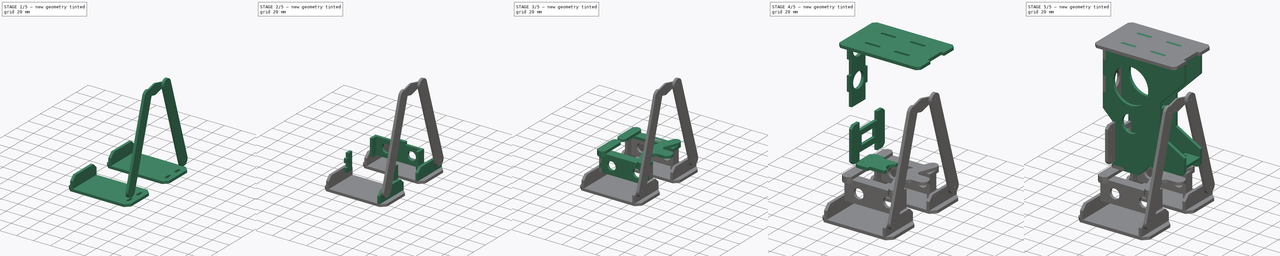
[diagram: build sequence overview — one tinted view per stage of 5, left to right]
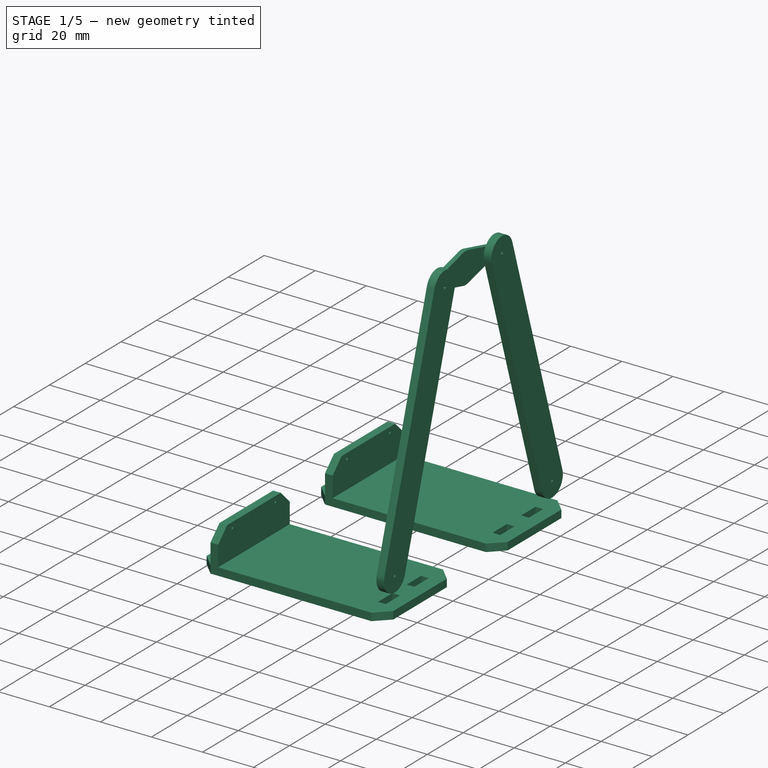
[diagram: stage 1 of 5 — iso view after this stage's code; geometry added in this stage tinted green]
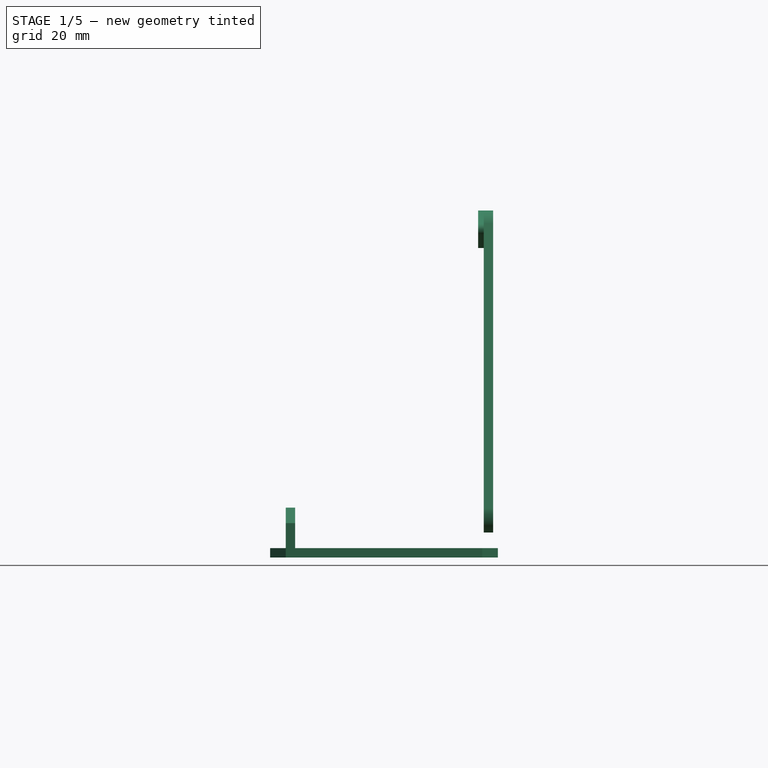
[diagram: stage 1 of 5 — front view after this stage's code; geometry added in this stage tinted green]
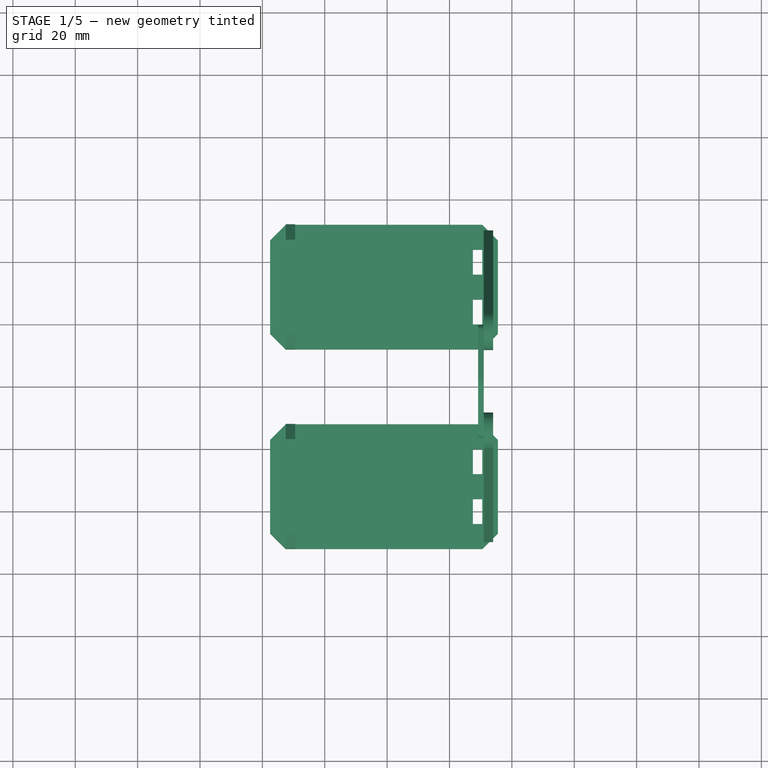
[diagram: stage 1 of 5 — top view after this stage's code; geometry added in this stage tinted green]
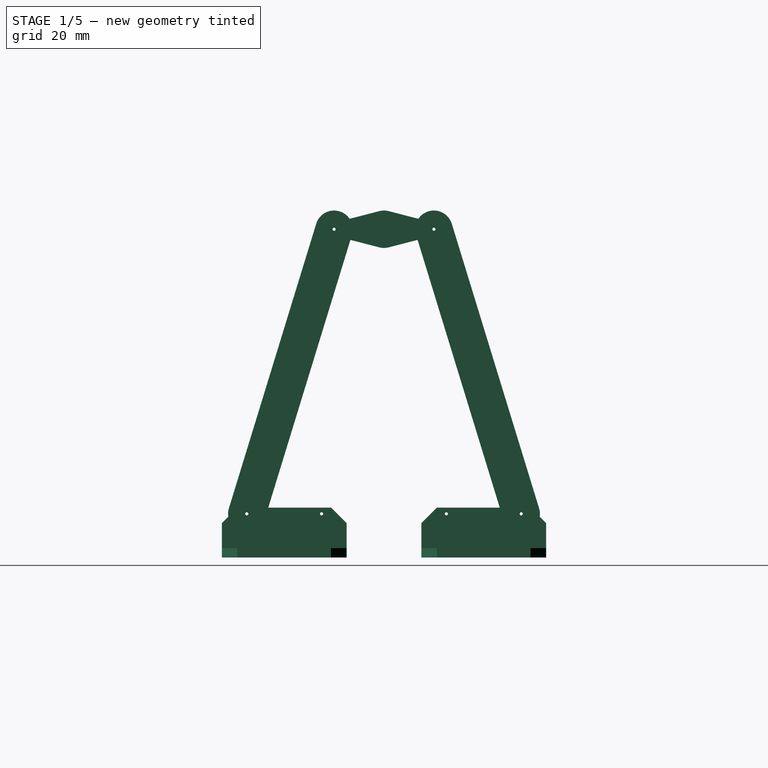
[diagram: stage 1 of 5 — right view after this stage's code; geometry added in this stage tinted green]
FCSTD DOCUMENT  (FreeCAD 0.16R6707 (Git))
Label: minion
License: All rights reserved
LicenseURL: http://en.wikipedia.org/wiki/All_rights_reserved
objects: Sketcher::SketchObject×19, PartDesign::Pad×19, Part::Feature×2, App::DocumentObjectGroup×2
note: 59 computed .brp shape members not serialized (recipe doc carries the construction recipe); baked Part::Feature solids carry a one-line shape summary decoded from their .brp

FEATURE [Sketcher::SketchObject] Sketch015
  Placement = pos=(-29.5,0,0) rot=(0.57735,0.57735,0.57735;2.0944rad)
  sketch-geometry (32):
    g0: LineSegment StartX=-17 StartY=-80 StartZ=0 EndX=-12 EndY=-85 EndZ=0
    g1: LineSegment StartX=-12 StartY=-85 StartZ=0 EndX=-12 EndY=-93 EndZ=0
    g2: LineSegment StartX=-12 StartY=-93 StartZ=0 EndX=-20 EndY=-93 EndZ=0
    g3: LineSegment StartX=-20 StartY=-93 StartZ=0 EndX=-20 EndY=-96 EndZ=0
    g4: LineSegment StartX=-20 StartY=-96 StartZ=0 EndX=-28 EndY=-96 EndZ=0
    g5: LineSegment StartX=-28 StartY=-96 StartZ=0 EndX=-28 EndY=-93 EndZ=0
    g6: LineSegment StartX=-28 StartY=-93 StartZ=0 EndX=-36 EndY=-93 EndZ=0
    g7: LineSegment StartX=-36 StartY=-93 StartZ=0 EndX=-36 EndY=-96 EndZ=0
    g8: LineSegment StartX=-36 StartY=-96 StartZ=0 EndX=-44 EndY=-96 EndZ=0
    g9: LineSegment StartX=-44 StartY=-96 StartZ=0 EndX=-44 EndY=-93 EndZ=0
    g10: LineSegment StartX=-44 StartY=-93 StartZ=0 EndX=-52 EndY=-93 EndZ=0
    g11: LineSegment StartX=-52 StartY=-93 StartZ=0 EndX=-52 EndY=-85 EndZ=0
    g12: LineSegment StartX=-52 StartY=-85 StartZ=0 EndX=-47 EndY=-80 EndZ=0
    g13: LineSegment StartX=-47 StartY=-80 StartZ=0 EndX=-17 EndY=-80 EndZ=0
    g14: LineSegment StartX=17 StartY=-80 StartZ=0 EndX=12 EndY=-85 EndZ=0
    g15: LineSegment StartX=12 StartY=-85 StartZ=0 EndX=12 EndY=-93 EndZ=0
    g16: LineSegment StartX=12 StartY=-93 StartZ=0 EndX=20 EndY=-93 EndZ=0
    g17: LineSegment StartX=20 StartY=-93 StartZ=0 EndX=20 EndY=-96 EndZ=0
    g18: LineSegment StartX=20 StartY=-96 StartZ=0 EndX=28 EndY=-96 EndZ=0
    g19: LineSegment StartX=28 StartY=-96 StartZ=0 EndX=28 EndY=-93 EndZ=0
    g20: LineSegment StartX=28 StartY=-93 StartZ=0 EndX=36 EndY=-93 EndZ=0
    g21: LineSegment StartX=36 StartY=-93 StartZ=0 EndX=36 EndY=-96 EndZ=0
    g22: LineSegment StartX=36 StartY=-96 StartZ=0 EndX=44 EndY=-96 EndZ=0
    g23: LineSegment StartX=44 StartY=-96 StartZ=0 EndX=44 EndY=-93 EndZ=0
    g24: LineSegment StartX=44 StartY=-93 StartZ=0 EndX=52 EndY=-93 EndZ=0
    g25: LineSegment StartX=52 StartY=-93 StartZ=0 EndX=52 EndY=-85 EndZ=0
    g26: LineSegment StartX=52 StartY=-85 StartZ=0 EndX=47 EndY=-80 EndZ=0
    g27: LineSegment StartX=47 StartY=-80 StartZ=0 EndX=17 EndY=-80 EndZ=0
    g28: Circle CenterX=-20 CenterY=-82 CenterZ=0 NormalX=0 NormalY=0 NormalZ=1 Radius=0.5
    g29: Circle CenterX=20 CenterY=-82 CenterZ=0 NormalX=0 NormalY=0 NormalZ=1 Radius=0.5
    g30: Circle CenterX=-44 CenterY=-82 CenterZ=0 NormalX=0 NormalY=0 NormalZ=1 Radius=0.5
    g31: Circle CenterX=44 CenterY=-82 CenterZ=0 NormalX=0 NormalY=0 NormalZ=1 Radius=0.5
  constraints (93):
    c: Coincident(g0,g1)
    c: Vertical(g1)
    c: Coincident(g1,g2)
    c: Horizontal(g2)
    c: Coincident(g2,g3)
    c: Coincident(g3,g4)
    c: Horizontal(g4)
    c: Coincident(g4,g5)
    c: Vertical(g5)
    c: Coincident(g5,g6)
    c: Horizontal(g6)
    c: Coincident(g6,g7)
    c: Vertical(g7)
    c: Coincident(g7,g8)
    c: Coincident(g8,g9)
    c: Vertical(g9)
    c: Coincident(g9,g10)
    c: Horizontal(g10)
    c: Coincident(g10,g11)
    c: Vertical(g11)
    c: Coincident(g11,g12)
    c: Coincident(g12,g13)
    c: Coincident(g13,g0)
    c: Horizontal(g13)
    c: Coincident(g14,g15)
    c: Vertical(g15)
    c: Coincident(g15,g16)
    c: Horizontal(g16)
    c: Coincident(g16,g17)
    c: Coincident(g17,g18)
    c: Coincident(g18,g19)
    c: Coincident(g19,g20)
    c: Horizontal(g20)
    c: Coincident(g20,g21)
    c: Coincident(g21,g22)
    c: Horizontal(g22)
    c: Coincident(g22,g23)
    c: Coincident(g23,g24)
    c: Horizontal(g24)
    c: Coincident(g24,g25)
    c: Vertical(g25)
    c: Coincident(g25,g26)
    c: Coincident(g26,g27)
    c: Coincident(g27,g14)
    c: Horizontal(g8)
    c: Vertical(g3)
    c: Vertical(g17)
    c: Horizontal(g18)
    c: Vertical(g19)
    c: Vertical(g21)
    c: Vertical(g23)
    c: Horizontal(g27)
    c: Angle(g12) = 0.785398
    c: Angle(g0) = -0.785398
    c: Angle(g14) = -2.35619
    c: Angle(g26) = 2.35619
    c: Equal(g10,g8)
    c: Equal(g8,g6)
    c: Equal(g6,g4)
    c: Equal(g4,g2)
    c: Equal(g2,g16)
    c: Equal(g16,g18)
    c: Equal(g18,g20)
    c: Equal(g20,g22)
    c: Equal(g22,g24)
    c: DistanceX(g10,g10) = 8
    c: Equal(g9,g7)
    c: Equal(g7,g5)
    c: Equal(g5,g3)
    c: Equal(g3,g17)
    c: Equal(g17,g19)
    c: Equal(g19,g21)
    c: Equal(g21,g23)
    c: DistanceY(g9,g9) = 3
    c: Equal(g11,g1)
    c: Equal(g1,g15)
    c: Equal(g15,g25)
    c: DistanceY(g11,g11) = 8
    c: DistanceX(g11,g12) = 5
    c: DistanceX(g14,g14) = 5
    c: Symmetric(g0,g14,g-2)
    c: DistanceX(g0,g-1) = 17
    c: DistanceY(g0,g-1) = 80
    c: Radius(g28) = 0.5
    c: Equal(g28,g29)
    c: Symmetric(g28,g29,g-2)
    c: DistanceX(g28,g-1) = 20
    c: DistanceY(g28,g0) = 2
    c: Radius(g30) = 0.5
    c: Equal(g30,g31)
    c: Symmetric(g31,g30,g-2)
    c: DistanceY(g30,g28) = 0
    c: DistanceX(g12,g30) = 3
FEATURE [PartDesign::Pad] Pad015
  Length = 3
  Length2 = 100
  Placement = pos=(-29.5,0,0) rot=(0.57735,0.57735,0.57735;2.0944rad)
  Reversed = true
  Sketch = -> Sketch015
  Type = 0
FEATURE [Sketcher::SketchObject] Sketch016
  Placement = pos=(0,0,-93) rot=(1,0,0;3.14159rad)
  sketch-geometry (48):
    g0: LineSegment StartX=-32.5 StartY=52 StartZ=0 EndX=30.5 EndY=52 EndZ=0
    g1: LineSegment StartX=30.5 StartY=52 StartZ=0 EndX=35.5 EndY=47 EndZ=0
    g2: LineSegment StartX=35.5 StartY=47 StartZ=0 EndX=35.5 EndY=17 EndZ=0
    g3: LineSegment StartX=35.5 StartY=17 StartZ=0 EndX=30.5 EndY=12 EndZ=0
    g4: LineSegment StartX=30.5 StartY=12 StartZ=0 EndX=-32.5 EndY=12 EndZ=0
    g5: LineSegment StartX=-32.5 StartY=12 StartZ=0 EndX=-37.5 EndY=17 EndZ=0
    g6: LineSegment StartX=-37.5 StartY=17 StartZ=0 EndX=-37.5 EndY=47 EndZ=0
    g7: LineSegment StartX=-37.5 StartY=47 StartZ=0 EndX=-32.5 EndY=52 EndZ=0
    g8: LineSegment StartX=-32.5 StartY=-12 StartZ=0 EndX=30.5 EndY=-12 EndZ=0
    g9: LineSegment StartX=30.5 StartY=-12 StartZ=0 EndX=35.5 EndY=-17 EndZ=0
    g10: LineSegment StartX=35.5 StartY=-17 StartZ=0 EndX=35.5 EndY=-47 EndZ=0
    g11: LineSegment StartX=35.5 StartY=-47 StartZ=0 EndX=30.5 EndY=-52 EndZ=0
    g12: LineSegment StartX=30.5 StartY=-52 StartZ=0 EndX=-32.5 EndY=-52 EndZ=0
    g13: LineSegment StartX=-32.5 StartY=-52 StartZ=0 EndX=-37.5 EndY=-47 EndZ=0
    g14: LineSegment StartX=-37.5 StartY=-47 StartZ=0 EndX=-37.5 EndY=-17 EndZ=0
    g15: LineSegment StartX=-37.5 StartY=-17 StartZ=0 EndX=-32.5 EndY=-12 EndZ=0
    g16: LineSegment StartX=-32.5 StartY=44 StartZ=0 EndX=-29.5 EndY=44 EndZ=0
    g17: LineSegment StartX=-29.5 StartY=44 StartZ=0 EndX=-29.5 EndY=36 EndZ=0
    g18: LineSegment StartX=-29.5 StartY=36 StartZ=0 EndX=-32.5 EndY=36 EndZ=0
    g19: LineSegment StartX=-32.5 StartY=36 StartZ=0 EndX=-32.5 EndY=44 EndZ=0
    g20: LineSegment StartX=-32.5 StartY=28 StartZ=0 EndX=-29.5 EndY=28 EndZ=0
    g21: LineSegment StartX=-29.5 StartY=28 StartZ=0 EndX=-29.5 EndY=20 EndZ=0
    g22: LineSegment StartX=-29.5 StartY=20 StartZ=0 EndX=-32.5 EndY=20 EndZ=0
    g23: LineSegment StartX=-32.5 StartY=20 StartZ=0 EndX=-32.5 EndY=28 EndZ=0
    g24: LineSegment StartX=27.5 StartY=44 StartZ=0 EndX=30.5 EndY=44 EndZ=0
    g25: LineSegment StartX=30.5 StartY=44 StartZ=0 EndX=30.5 EndY=36 EndZ=0
    g26: LineSegment StartX=30.5 StartY=36 StartZ=0 EndX=27.5 EndY=36 EndZ=0
    g27: LineSegment StartX=27.5 StartY=36 StartZ=0 EndX=27.5 EndY=44 EndZ=0
    g28: LineSegment StartX=27.5 StartY=28 StartZ=0 EndX=30.5 EndY=28 EndZ=0
    g29: LineSegment StartX=30.5 StartY=28 StartZ=0 EndX=30.5 EndY=20 EndZ=0
    g30: LineSegment StartX=30.5 StartY=20 StartZ=0 EndX=27.5 EndY=20 EndZ=0
    g31: LineSegment StartX=27.5 StartY=20 StartZ=0 EndX=27.5 EndY=28 EndZ=0
    g32: LineSegment StartX=-32.5 StartY=-20 StartZ=0 EndX=-29.5 EndY=-20 EndZ=0
    g33: LineSegment StartX=-29.5 StartY=-20 StartZ=0 EndX=-29.5 EndY=-28 EndZ=0
    g34: LineSegment StartX=-29.5 StartY=-28 StartZ=0 EndX=-32.5 EndY=-28 EndZ=0
    g35: LineSegment StartX=-32.5 StartY=-28 StartZ=0 EndX=-32.5 EndY=-20 EndZ=0
    g36: LineSegment StartX=-32.5 StartY=-36 StartZ=0 EndX=-29.5 EndY=-36 EndZ=0
    g37: LineSegment StartX=-29.5 StartY=-36 StartZ=0 EndX=-29.5 EndY=-44 EndZ=0
    g38: LineSegment StartX=-29.5 StartY=-44 StartZ=0 EndX=-32.5 EndY=-44 EndZ=0
    g39: LineSegment StartX=-32.5 StartY=-44 StartZ=0 EndX=-32.5 EndY=-36 EndZ=0
    g40: LineSegment StartX=27.5 StartY=-20 StartZ=0 EndX=30.5 EndY=-20 EndZ=0
    g41: LineSegment StartX=30.5 StartY=-20 StartZ=0 EndX=30.5 EndY=-28 EndZ=0
    g42: LineSegment StartX=30.5 StartY=-28 StartZ=0 EndX=27.5 EndY=-28 EndZ=0
    g43: LineSegment StartX=27.5 StartY=-28 StartZ=0 EndX=27.5 EndY=-20 EndZ=0
    g44: LineSegment StartX=27.5 StartY=-36 StartZ=0 EndX=30.5 EndY=-36 EndZ=0
    g45: LineSegment StartX=30.5 StartY=-36 StartZ=0 EndX=30.5 EndY=-44 EndZ=0
    g46: LineSegment StartX=30.5 StartY=-44 StartZ=0 EndX=27.5 EndY=-44 EndZ=0
    g47: LineSegment StartX=27.5 StartY=-44 StartZ=0 EndX=27.5 EndY=-36 EndZ=0
  constraints (142):
    c: Horizontal(g0)
    c: Coincident(g0,g1)
    c: Coincident(g1,g2)
    c: Vertical(g2)
    c: Coincident(g2,g3)
    c: Coincident(g3,g4)
    c: Horizontal(g4)
    c: Coincident(g4,g5)
    c: Coincident(g5,g6)
    c: Vertical(g6)
    c: Coincident(g6,g7)
    c: Coincident(g7,g0)
    c: Horizontal(g8)
    c: Coincident(g8,g9)
    c: Coincident(g9,g10)
    c: Vertical(g10)
    c: Coincident(g10,g11)
    c: Coincident(g11,g12)
    c: Horizontal(g12)
    c: Coincident(g12,g13)
    c: Coincident(g13,g14)
    c: Coincident(g14,g15)
    c: Coincident(g8,g15)
    c: Equal(g4,g8)
    c: Equal(g8,g0)
    c: Equal(g0,g12)
    c: Vertical(g14)
    c: Equal(g6,g2)
    c: Equal(g2,g10)
    c: Equal(g10,g14)
    c: Angle(g7) = 0.785398
    c: Angle(g1) = -0.785398
    c: Angle(g3) = -2.35619
    c: Angle(g5) = 2.35619
    c: Angle(g15) = 0.785398
    c: Angle(g9) = -0.785398
    c: Angle(g11) = -2.35619
    c: Angle(g13) = 2.35619
    c: Symmetric(g8,g4,g-1)
    c: DistanceX(g6,g0) = 5
    c: DistanceX(g0,g1) = 5
    c: DistanceX(g8,g9) = 5
    c: DistanceX(g14,g8) = 5
    c: DistanceY(g6,g6) = 30
    c: DistanceX(g0,g0) = 63
    c: DistanceY(g-1,g4) = 12
    c: DistanceX(g4,g-1) = 32.5
    c: Coincident(g16,g17)
    c: Coincident(g17,g18)
    c: Coincident(g18,g19)
    c: Coincident(g19,g16)
    c: Horizontal(g16)
    c: Horizontal(g18)
    c: Vertical(g17)
    c: Vertical(g19)
    c: Coincident(g20,g21)
    c: Coincident(g21,g22)
    c: Coincident(g22,g23)
    c: Coincident(g23,g20)
    c: Horizontal(g20)
    c: Horizontal(g22)
    c: Vertical(g21)
    c: Vertical(g23)
    c: Coincident(g24,g25)
    c: Coincident(g25,g26)
    c: Coincident(g26,g27)
    c: Coincident(g27,g24)
    c: Horizontal(g24)
    c: Horizontal(g26)
    c: Vertical(g25)
    c: Vertical(g27)
    c: Coincident(g28,g29)
    c: Coincident(g29,g30)
    c: Coincident(g30,g31)
    c: Coincident(g31,g28)
    c: Horizontal(g28)
    c: Horizontal(g30)
    c: Vertical(g29)
    c: Vertical(g31)
    c: Coincident(g32,g33)
    c: Coincident(g33,g34)
    c: Coincident(g34,g35)
    c: Coincident(g35,g32)
    c: Horizontal(g32)
    c: Horizontal(g34)
    c: Vertical(g33)
    c: Vertical(g35)
    c: Coincident(g36,g37)
    c: Coincident(g37,g38)
    c: Coincident(g38,g39)
    c: Coincident(g39,g36)
    c: Horizontal(g36)
    c: Horizontal(g38)
    c: Vertical(g37)
    c: Vertical(g39)
    c: Coincident(g40,g41)
    c: Coincident(g41,g42)
    c: Coincident(g42,g43)
    c: Coincident(g43,g40)
    c: Horizontal(g40)
    c: Horizontal(g42)
    c: Vertical(g41)
    c: Vertical(g43)
    c: Coincident(g44,g45)
    c: Coincident(g45,g46)
    c: Coincident(g46,g47)
    c: Coincident(g47,g44)
    c: Horizontal(g44)
    c: Horizontal(g46)
    c: Vertical(g45)
    c: Vertical(g47)
    c: Equal(g17,g27)
    c: Equal(g27,g31)
    c: Equal(g31,g21)
    c: Equal(g21,g33)
    c: Equal(g33,g37)
    c: Equal(g37,g47)
    c: Equal(g47,g43)
    c: DistanceY(g37,g37) = 8
    c: Equal(g38,g46)
    c: Equal(g46,g42)
    c: Equal(g42,g34)
    c: Equal(g34,g22)
    c: Equal(g22,g30)
    c: Equal(g30,g26)
    c: Equal(g26,g18)
    c: DistanceX(g38,g38) = 3
    c: DistanceX(g33,g36) = 0
    c: DistanceX(g44,g42) = 0
    c: DistanceY(g33,g42) = 0
    c: DistanceY(g44,g36) = 0
    c: DistanceX(g17,g20) = 0
    c: DistanceY(g20,g28) = 0
    c: DistanceX(g28,g26) = 0
    c: DistanceY(g17,g26) = 0
    c: DistanceY(g28,g26) = 8
    c: DistanceY(g44,g42) = 8
    c: DistanceX(g33,g42) = 57
    c: DistanceX(g20,g28) = 57
    c: Symmetric(g21,g32,g-1)
    c: DistanceY(g-1,g21) = 20
    c: DistanceX(g14,g32) = 5
FEATURE [PartDesign::Pad] Pad016
  Length = 3
  Length2 = 100
  Placement = pos=(0,0,-93) rot=(1,0,0;3.14159rad)
  Sketch = -> Sketch016
  Type = 0
FEATURE [Sketcher::SketchObject] Sketch017
  Placement = pos=(31,0,0) rot=(0.57735,0.57735,0.57735;2.0944rad)
  sketch-geometry (10):
    g0: ArcOfCircle CenterX=0 CenterY=9.25 CenterZ=0 NormalX=0 NormalY=0 NormalZ=1 Radius=6 StartAngle=4.46782 EndAngle=4.95696
    g1: ArcOfCircle CenterX=-16 CenterY=9.25 CenterZ=0 NormalX=0 NormalY=0 NormalZ=1 Radius=2 StartAngle=1.82346 EndAngle=4.45972
    g2: ArcOfCircle CenterX=16 CenterY=9.25 CenterZ=0 NormalX=0 NormalY=0 NormalZ=1 Radius=2 StartAngle=4.96506 EndAngle=7.60131
    g3: LineSegment StartX=-16.5 StartY=11.1865 StartZ=0 EndX=-1.45283 EndY=15.0715 EndZ=0
    g4: LineSegment StartX=1.45283 StartY=15.0715 StartZ=0 EndX=16.5 EndY=11.1865 EndZ=0
    g5: LineSegment StartX=16.5 StartY=7.3135 StartZ=0 EndX=1.45283 EndY=3.42855 EndZ=0
    g6: LineSegment StartX=-16.5 StartY=7.3135 StartZ=0 EndX=-1.45283 EndY=3.42855 EndZ=0
    g7: ArcOfCircle CenterX=0 CenterY=9.25 CenterZ=0 NormalX=0 NormalY=0 NormalZ=1 Radius=6 StartAngle=1.32623 EndAngle=1.81537
    g8: Circle CenterX=-16 CenterY=9.25 CenterZ=0 NormalX=0 NormalY=0 NormalZ=1 Radius=0.5
    g9: Circle CenterX=16 CenterY=9.25 CenterZ=0 NormalX=0 NormalY=0 NormalZ=1 Radius=0.5
  constraints (30):
    c: DistanceY(g-1,g0) = 9.25
    c: Symmetric(g1,g2,g-2)
    c: Radius(g1) = 2
    c: Equal(g1,g2)
    c: DistanceY(g0,g1) = 0
    c: DistanceX(g1,g-1) = 16
    c: Tangent(g5,g2)
    c: Tangent(g4,g2)
    c: Coincident(g1,g3)
    c: Coincident(g1,g6)
    c: Coincident(g2,g5)
    c: Coincident(g2,g4)
    c: Coincident(g0,g6)
    c: Coincident(g7,g3)
    c: Equal(g0,g7)
    c: Coincident(g0,g5)
    c: Coincident(g7,g4)
    c: Coincident(g0,g7)
    c: Radius(g7) = 6
    c: Equal(g6,g3)
    c: Equal(g3,g4)
    c: Equal(g4,g5)
    c: Symmetric(g3,g4,g-2)
    c: Symmetric(g0,g0,g-2)
    c: DistanceX(g3,g-1) = 1.45283
    c: Radius(g8) = 0.5
    c: Equal(g8,g9)
    c: Symmetric(g8,g9,g-2)
    c: DistanceX(g8,g-1) = 16
    c: DistanceY(g1,g8) = 0
FEATURE [PartDesign::Pad] Pad017
  Length = 1.8
  Length2 = 100
  Placement = pos=(31,0,0) rot=(0.57735,0.57735,0.57735;2.0944rad)
  Reversed = true
  Sketch = -> Sketch017
  Type = 0
FEATURE [Sketcher::SketchObject] Sketch018
  Placement = pos=(31,0,2) rot=(0.57735,0.57735,0.57735;2.0944rad)
  sketch-geometry (12):
    g0: Circle CenterX=-44 CenterY=-84 CenterZ=0 NormalX=0 NormalY=0 NormalZ=1 Radius=0.5
    g1: Circle CenterX=44 CenterY=-84 CenterZ=0 NormalX=0 NormalY=0 NormalZ=1 Radius=0.5
    g2: Circle CenterX=-16 CenterY=7.25 CenterZ=0 NormalX=0 NormalY=0 NormalZ=1 Radius=0.5
    g3: ArcOfCircle CenterX=-16 CenterY=7.25 CenterZ=0 NormalX=0 NormalY=0 NormalZ=1 Radius=6 StartAngle=5.9996 EndAngle=9.1412
    g4: ArcOfCircle CenterX=-44 CenterY=-84 CenterZ=0 NormalX=0 NormalY=0 NormalZ=1 Radius=6 StartAngle=2.85801 EndAngle=5.9996
    g5: LineSegment StartX=-21.7604 StartY=8.92878 StartZ=0 EndX=-49.7604 EndY=-82.3212 EndZ=0
    g6: LineSegment StartX=-10.2396 StartY=5.57122 StartZ=0 EndX=-38.2396 EndY=-85.6788 EndZ=0
    g7: Circle CenterX=16 CenterY=7.25 CenterZ=0 NormalX=0 NormalY=0 NormalZ=1 Radius=0.5
    g8: ArcOfCircle CenterX=16 CenterY=7.25 CenterZ=0 NormalX=0 NormalY=0 NormalZ=1 Radius=6 StartAngle=0.283582 EndAngle=3.42517
    g9: ArcOfCircle CenterX=44 CenterY=-84 CenterZ=0 NormalX=0 NormalY=0 NormalZ=1 Radius=6 StartAngle=3.42517 EndAngle=6.56677
    g10: LineSegment StartX=10.2396 StartY=5.57122 StartZ=0 EndX=38.2396 EndY=-85.6788 EndZ=0
    g11: LineSegment StartX=21.7604 StartY=8.92878 StartZ=0 EndX=49.7604 EndY=-82.3212 EndZ=0
  constraints (40):
    c: DistanceX(g0,g-1) = 44
    c: DistanceY(g0,g-1) = 84
    c: Radius(g0) = 0.5
    c: DistanceX(g2,g-1) = 16
    c: DistanceY(g-1,g2) = 7.25
    c: Radius(g3) = 6
    c: Coincident(g3,g2)
    c: Radius(g4) = 6
    c: Coincident(g4,g0)
    c: Coincident(g3,g6)
    c: Coincident(g3,g5)
    c: Coincident(g4,g5)
    c: Coincident(g4,g6)
    c: Radius(g2) = 0.5
    c: Equal(g2,g7)
    c: Symmetric(g7,g2,g-2)
    c: Radius(g8) = 6
    c: Coincident(g8,g7)
    c: Radius(g9) = 6
    c: Symmetric(g0,g1,g-2)
    c: Coincident(g9,g1)
    c: Coincident(g8,g11)
    c: Coincident(g8,g10)
    c: Coincident(g9,g10)
    c: Coincident(g9,g11)
    c: Angle(g4) = 3.14159
    c: Angle(g9) = 3.14159
    c: Angle(g3) = 3.14159
    c: Angle(g8) = 3.14159
    c: Symmetric(g3,g8,g-2)
    c: Symmetric(g4,g9,g-2)
    c: Symmetric(g9,g4,g-2)
    c: Symmetric(g3,g8,g-2)
    c: Equal(g5,g6)
    c: Equal(g6,g10)
    c: Equal(g10,g11)
    c: DistanceY(g4,g9) = 0
    c: DistanceY(g7,g2) = 0
    c: DistanceY(g1,g0) = 0
    c: Radius(g1) = 0.5
FEATURE [PartDesign::Pad] Pad018
  Length = 3
  Length2 = 100
  Placement = pos=(31,0,2) rot=(0.57735,0.57735,0.57735;2.0944rad)
  Sketch = -> Sketch018
  Type = 0
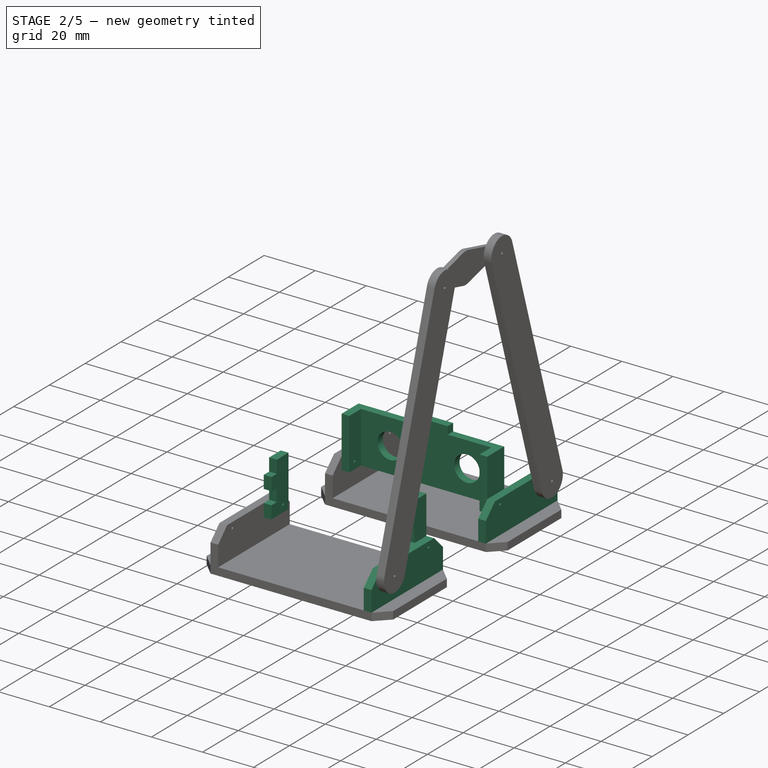
[diagram: stage 2 of 5 — iso view after this stage's code; geometry added in this stage tinted green]
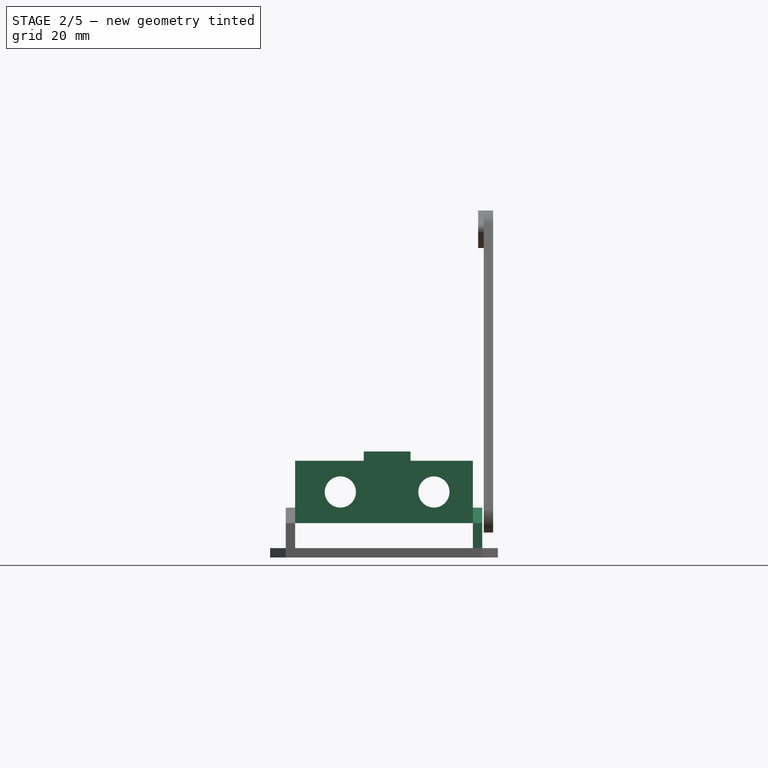
[diagram: stage 2 of 5 — front view after this stage's code; geometry added in this stage tinted green]
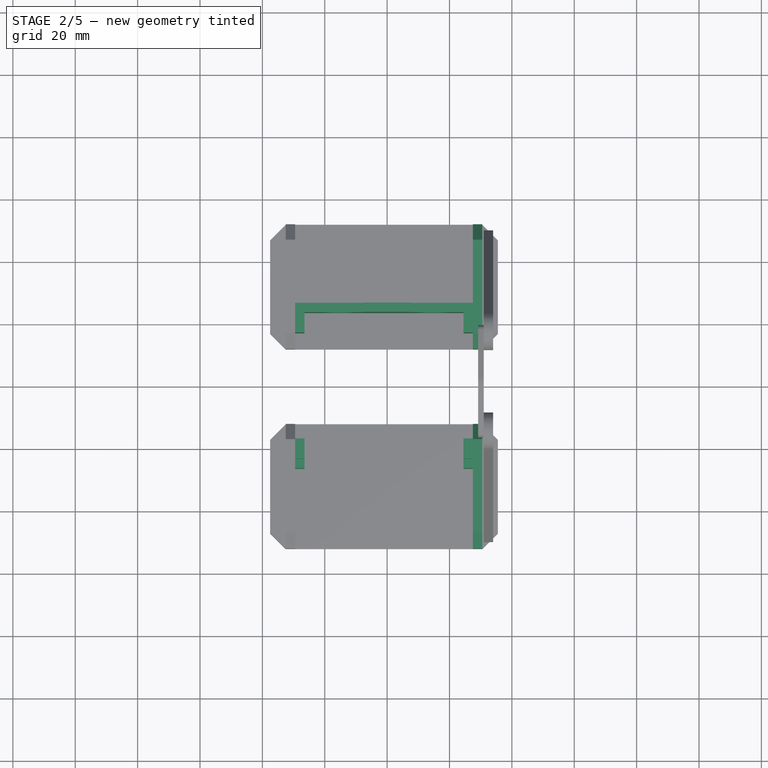
[diagram: stage 2 of 5 — top view after this stage's code; geometry added in this stage tinted green]
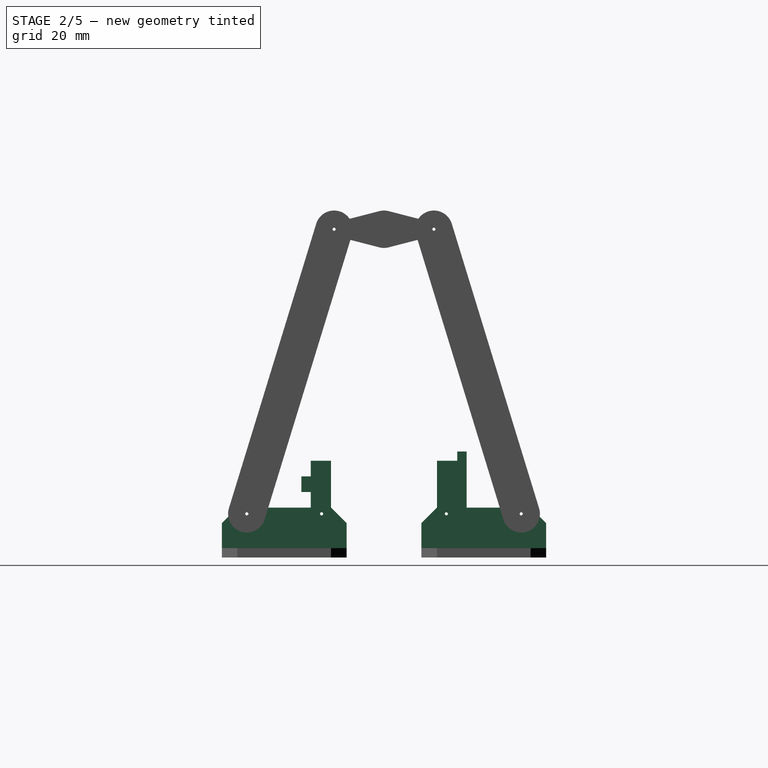
[diagram: stage 2 of 5 — right view after this stage's code; geometry added in this stage tinted green]
FEATURE [Sketcher::SketchObject] Sketch011
  Placement = pos=(0,23.5,0) rot=(1,0,0;1.5708rad)
  sketch-geometry (22):
    g0: LineSegment StartX=-29.5 StartY=-65 StartZ=0 EndX=-7.5 EndY=-65 EndZ=0
    g1: LineSegment StartX=-7.5 StartY=-65 StartZ=0 EndX=-7.5 EndY=-62 EndZ=0
    g2: LineSegment StartX=-7.5 StartY=-62 StartZ=0 EndX=7.5 EndY=-62 EndZ=0
    g3: LineSegment StartX=7.5 StartY=-62 StartZ=0 EndX=7.5 EndY=-65 EndZ=0
    g4: LineSegment StartX=7.5 StartY=-65 StartZ=0 EndX=27.5 EndY=-65 EndZ=0
    g5: LineSegment StartX=27.5 StartY=-65 StartZ=0 EndX=27.5 EndY=-70 EndZ=0
    g6: LineSegment StartX=27.5 StartY=-70 StartZ=0 EndX=24.5 EndY=-70 EndZ=0
    g7: LineSegment StartX=24.5 StartY=-70 StartZ=0 EndX=24.5 EndY=-75 EndZ=0
    g8: LineSegment StartX=24.5 StartY=-75 StartZ=0 EndX=27.5 EndY=-75 EndZ=0
    g9: LineSegment StartX=27.5 StartY=-75 StartZ=0 EndX=27.5 EndY=-80 EndZ=0
    g10: LineSegment StartX=27.5 StartY=-80 StartZ=0 EndX=24.5 EndY=-80 EndZ=0
    g11: LineSegment StartX=24.5 StartY=-80 StartZ=0 EndX=24.5 EndY=-85 EndZ=0
    g12: LineSegment StartX=24.5 StartY=-85 StartZ=0 EndX=-26.5 EndY=-85 EndZ=0
    g13: LineSegment StartX=-26.5 StartY=-85 StartZ=0 EndX=-26.5 EndY=-80 EndZ=0
    g14: LineSegment StartX=-26.5 StartY=-80 StartZ=0 EndX=-29.5 EndY=-80 EndZ=0
    g15: LineSegment StartX=-29.5 StartY=-80 StartZ=0 EndX=-29.5 EndY=-75 EndZ=0
    g16: LineSegment StartX=-29.5 StartY=-75 StartZ=0 EndX=-26.5 EndY=-75 EndZ=0
    g17: LineSegment StartX=-26.5 StartY=-75 StartZ=0 EndX=-26.5 EndY=-70 EndZ=0
    g18: LineSegment StartX=-26.5 StartY=-70 StartZ=0 EndX=-29.5 EndY=-70 EndZ=0
    g19: LineSegment StartX=-29.5 StartY=-70 StartZ=0 EndX=-29.5 EndY=-65 EndZ=0
    g20: Circle CenterX=-15 CenterY=-75 CenterZ=0 NormalX=0 NormalY=0 NormalZ=1 Radius=5
    g21: Circle CenterX=15 CenterY=-75 CenterZ=0 NormalX=0 NormalY=0 NormalZ=1 Radius=5
  constraints (66):
    c: Horizontal(g0)
    c: Coincident(g0,g1)
    c: Vertical(g1)
    c: Coincident(g1,g2)
    c: Horizontal(g2)
    c: Coincident(g2,g3)
    c: Vertical(g3)
    c: Coincident(g3,g4)
    c: Horizontal(g4)
    c: Coincident(g4,g5)
    c: Vertical(g5)
    c: Coincident(g5,g6)
    c: Coincident(g6,g7)
    c: Coincident(g7,g8)
    c: Horizontal(g8)
    c: Coincident(g8,g9)
    c: Vertical(g9)
    c: Coincident(g9,g10)
    c: Coincident(g10,g11)
    c: Coincident(g11,g12)
    c: Horizontal(g12)
    c: Coincident(g12,g13)
    c: Coincident(g13,g14)
    c: Coincident(g14,g15)
    c: Coincident(g15,g16)
    c: Coincident(g16,g17)
    c: Vertical(g17)
    c: Coincident(g17,g18)
    c: Horizontal(g18)
    c: Coincident(g18,g19)
    c: Coincident(g19,g0)
    c: Vertical(g19)
    c: Horizontal(g16)
    c: Vertical(g15)
    c: Horizontal(g14)
    c: Vertical(g13)
    c: Horizontal(g6)
    c: Vertical(g7)
    c: Horizontal(g10)
    c: Vertical(g11)
    c: DistanceX(g2,g2) = 15
    c: Equal(g13,g15)
    c: Equal(g15,g17)
    c: Equal(g17,g19)
    c: Equal(g19,g5)
    c: Equal(g5,g7)
    c: Equal(g7,g9)
    c: Equal(g9,g11)
    c: DistanceY(g13,g13) = 5
    c: Equal(g18,g16)
    c: Equal(g16,g14)
    c: Equal(g14,g6)
    c: Equal(g6,g8)
    c: Equal(g8,g10)
    c: DistanceX(g18,g18) = 3
    c: DistanceY(g1,g1) = 3
    c: Equal(g3,g1)
    c: DistanceX(g0,g-1) = 7.5
    c: DistanceX(g0,g-1) = 29.5
    c: DistanceX(g0,g4) = 57
    c: DistanceY(g1,g-1) = 62
    c: Symmetric(g20,g21,g-2)
    c: DistanceX(g20,g-1) = 15
    c: DistanceY(g20,g4) = 10
    c: Radius(g20) = 5
    c: Equal(g20,g21)
FEATURE [PartDesign::Pad] Pad011
  Length = 3
  Length2 = 100
  Placement = pos=(0,23.5,0) rot=(1,0,0;1.5708rad)
  Reversed = true
  Sketch = -> Sketch011
  Type = 0
FEATURE [Sketcher::SketchObject] Sketch012
  Placement = pos=(24.5,0,0) rot=(0.57735,0.57735,0.57735;2.0944rad)
  sketch-geometry (22):
    g0: LineSegment StartX=-23.5 StartY=-65 StartZ=0 EndX=-23.5 EndY=-70 EndZ=0
    g1: LineSegment StartX=-23.5 StartY=-70 StartZ=0 EndX=-26.5 EndY=-70 EndZ=0
    g2: LineSegment StartX=-26.5 StartY=-70 StartZ=0 EndX=-26.5 EndY=-75 EndZ=0
    g3: LineSegment StartX=-26.5 StartY=-75 StartZ=0 EndX=-23.5 EndY=-75 EndZ=0
    g4: LineSegment StartX=-23.5 StartY=-75 StartZ=0 EndX=-23.5 EndY=-80 EndZ=0
    g5: LineSegment StartX=-23.5 StartY=-80 StartZ=0 EndX=-26.5 EndY=-80 EndZ=0
    g6: LineSegment StartX=-26.5 StartY=-80 StartZ=0 EndX=-26.5 EndY=-85 EndZ=0
    g7: LineSegment StartX=-26.5 StartY=-85 StartZ=0 EndX=-17 EndY=-85 EndZ=0
    g8: LineSegment StartX=-17 StartY=-85 StartZ=0 EndX=-17 EndY=-65 EndZ=0
    g9: LineSegment StartX=-17 StartY=-65 StartZ=0 EndX=-23.5 EndY=-65 EndZ=0
    g10: LineSegment StartX=17 StartY=-65 StartZ=0 EndX=17 EndY=-85 EndZ=0
    g11: LineSegment StartX=17 StartY=-85 StartZ=0 EndX=26.5 EndY=-85 EndZ=0
    g12: LineSegment StartX=26.5 StartY=-85 StartZ=0 EndX=26.5 EndY=-80 EndZ=0
    g13: LineSegment StartX=26.5 StartY=-80 StartZ=0 EndX=23.5 EndY=-80 EndZ=0
    g14: LineSegment StartX=23.5 StartY=-80 StartZ=0 EndX=23.5 EndY=-75 EndZ=0
    g15: LineSegment StartX=23.5 StartY=-75 StartZ=0 EndX=26.5 EndY=-75 EndZ=0
    g16: LineSegment StartX=26.5 StartY=-75 StartZ=0 EndX=26.5 EndY=-70 EndZ=0
    g17: LineSegment StartX=26.5 StartY=-70 StartZ=0 EndX=23.5 EndY=-70 EndZ=0
    g18: LineSegment StartX=23.5 StartY=-70 StartZ=0 EndX=23.5 EndY=-65 EndZ=0
    g19: LineSegment StartX=23.5 StartY=-65 StartZ=0 EndX=17 EndY=-65 EndZ=0
    g20: Circle CenterX=-20 CenterY=-82 CenterZ=0 NormalX=0 NormalY=0 NormalZ=1 Radius=0.5
    g21: Circle CenterX=20 CenterY=-82 CenterZ=0 NormalX=0 NormalY=0 NormalZ=1 Radius=0.5
  constraints (65):
    c: Vertical(g0)
    c: Coincident(g0,g1)
    c: Coincident(g1,g2)
    c: Vertical(g2)
    c: Coincident(g2,g3)
    c: Coincident(g3,g4)
    c: Vertical(g4)
    c: Coincident(g4,g5)
    c: Coincident(g5,g6)
    c: Coincident(g6,g7)
    c: Horizontal(g7)
    c: Coincident(g7,g8)
    c: Vertical(g8)
    c: Coincident(g8,g9)
    c: Coincident(g9,g0)
    c: Vertical(g10)
    c: Coincident(g10,g11)
    c: Horizontal(g11)
    c: Coincident(g11,g12)
    c: Vertical(g12)
    c: Coincident(g12,g13)
    c: Horizontal(g13)
    c: Coincident(g13,g14)
    c: Coincident(g14,g15)
    c: Coincident(g15,g16)
    c: Coincident(g16,g17)
    c: Coincident(g17,g18)
    c: Coincident(g18,g19)
    c: Coincident(g19,g10)
    c: Horizontal(g9)
    c: Horizontal(g1)
    c: Horizontal(g3)
    c: Horizontal(g5)
    c: Vertical(g6)
    c: Horizontal(g19)
    c: Vertical(g14)
    c: Horizontal(g15)
    c: Vertical(g16)
    c: Horizontal(g17)
    c: Vertical(g18)
    c: Equal(g1,g3)
    c: Equal(g3,g5)
    c: Equal(g5,g17)
    c: Equal(g17,g15)
    c: Equal(g15,g13)
    c: Equal(g0,g2)
    c: Equal(g2,g4)
    c: Equal(g4,g6)
    c: Equal(g6,g12)
    c: Equal(g12,g14)
    c: Equal(g14,g16)
    c: Equal(g16,g18)
    c: DistanceY(g0,g0) = 5
    c: DistanceX(g1,g1) = 3
    c: DistanceY(g8,g10) = 0
    c: Symmetric(g10,g8,g-2)
    c: Equal(g7,g11)
    c: DistanceX(g7,g7) = 9.5
    c: DistanceX(g8,g-1) = 17
    c: DistanceY(g8,g-1) = 65
    c: Radius(g21) = 0.5
    c: Equal(g21,g20)
    c: Symmetric(g20,g21,g-2)
    c: DistanceX(g20,g7) = 3
    c: DistanceY(g7,g20) = 3
FEATURE [PartDesign::Pad] Pad012
  Length = 3
  Length2 = 100
  Placement = pos=(24.5,0,0) rot=(0.57735,0.57735,0.57735;2.0944rad)
  Sketch = -> Sketch012
  Type = 0
FEATURE [Sketcher::SketchObject] Sketch013
  Placement = pos=(-26.5,0,0) rot=(0.57735,0.57735,0.57735;2.0944rad)
  sketch-geometry (22):
    g0: LineSegment StartX=-23.5 StartY=-65 StartZ=0 EndX=-23.5 EndY=-70 EndZ=0
    g1: LineSegment StartX=-23.5 StartY=-70 StartZ=0 EndX=-26.5 EndY=-70 EndZ=0
    g2: LineSegment StartX=-26.5 StartY=-70 StartZ=0 EndX=-26.5 EndY=-75 EndZ=0
    g3: LineSegment StartX=-26.5 StartY=-75 StartZ=0 EndX=-23.5 EndY=-75 EndZ=0
    g4: LineSegment StartX=-23.5 StartY=-75 StartZ=0 EndX=-23.5 EndY=-80 EndZ=0
    g5: LineSegment StartX=-23.5 StartY=-80 StartZ=0 EndX=-26.5 EndY=-80 EndZ=0
    g6: LineSegment StartX=-26.5 StartY=-80 StartZ=0 EndX=-26.5 EndY=-85 EndZ=0
    g7: LineSegment StartX=-26.5 StartY=-85 StartZ=0 EndX=-17 EndY=-85 EndZ=0
    g8: LineSegment StartX=-17 StartY=-85 StartZ=0 EndX=-17 EndY=-65 EndZ=0
    g9: LineSegment StartX=-17 StartY=-65 StartZ=0 EndX=-23.5 EndY=-65 EndZ=0
    g10: LineSegment StartX=17 StartY=-65 StartZ=0 EndX=17 EndY=-85 EndZ=0
    g11: LineSegment StartX=17 StartY=-85 StartZ=0 EndX=26.5 EndY=-85 EndZ=0
    g12: LineSegment StartX=26.5 StartY=-85 StartZ=0 EndX=26.5 EndY=-80 EndZ=0
    g13: LineSegment StartX=26.5 StartY=-80 StartZ=0 EndX=23.5 EndY=-80 EndZ=0
    g14: LineSegment StartX=23.5 StartY=-80 StartZ=0 EndX=23.5 EndY=-75 EndZ=0
    g15: LineSegment StartX=23.5 StartY=-75 StartZ=0 EndX=26.5 EndY=-75 EndZ=0
    g16: LineSegment StartX=26.5 StartY=-75 StartZ=0 EndX=26.5 EndY=-70 EndZ=0
    g17: LineSegment StartX=26.5 StartY=-70 StartZ=0 EndX=23.5 EndY=-70 EndZ=0
    g18: LineSegment StartX=23.5 StartY=-70 StartZ=0 EndX=23.5 EndY=-65 EndZ=0
    g19: LineSegment StartX=23.5 StartY=-65 StartZ=0 EndX=17 EndY=-65 EndZ=0
    g20: Circle CenterX=-20 CenterY=-82 CenterZ=0 NormalX=0 NormalY=0 NormalZ=1 Radius=0.5
    g21: Circle CenterX=20 CenterY=-82 CenterZ=0 NormalX=0 NormalY=0 NormalZ=1 Radius=0.5
  constraints (65):
    c: Vertical(g0)
    c: Coincident(g0,g1)
    c: Coincident(g1,g2)
    c: Vertical(g2)
    c: Coincident(g2,g3)
    c: Coincident(g3,g4)
    c: Vertical(g4)
    c: Coincident(g4,g5)
    c: Coincident(g5,g6)
    c: Coincident(g6,g7)
    c: Horizontal(g7)
    c: Coincident(g7,g8)
    c: Vertical(g8)
    c: Coincident(g8,g9)
    c: Coincident(g9,g0)
    c: Vertical(g10)
    c: Coincident(g10,g11)
    c: Horizontal(g11)
    c: Coincident(g11,g12)
    c: Vertical(g12)
    c: Coincident(g12,g13)
    c: Horizontal(g13)
    c: Coincident(g13,g14)
    c: Coincident(g14,g15)
    c: Coincident(g15,g16)
    c: Coincident(g16,g17)
    c: Coincident(g17,g18)
    c: Coincident(g18,g19)
    c: Coincident(g19,g10)
    c: Horizontal(g9)
    c: Horizontal(g1)
    c: Horizontal(g3)
    c: Horizontal(g5)
    c: Vertical(g6)
    c: Horizontal(g19)
    c: Vertical(g14)
    c: Horizontal(g15)
    c: Vertical(g16)
    c: Horizontal(g17)
    c: Vertical(g18)
    c: Equal(g1,g3)
    c: Equal(g3,g5)
    c: Equal(g5,g17)
    c: Equal(g17,g15)
    c: Equal(g15,g13)
    c: Equal(g0,g2)
    c: Equal(g2,g4)
    c: Equal(g4,g6)
    c: Equal(g6,g12)
    c: Equal(g12,g14)
    c: Equal(g14,g16)
    c: Equal(g16,g18)
    c: DistanceY(g0,g0) = 5
    c: DistanceX(g1,g1) = 3
    c: DistanceY(g8,g10) = 0
    c: Symmetric(g10,g8,g-2)
    c: Equal(g7,g11)
    c: DistanceX(g7,g7) = 9.5
    c: DistanceX(g8,g-1) = 17
    c: DistanceY(g8,g-1) = 65
    c: Radius(g20) = 0.5
    c: Equal(g20,g21)
    c: Symmetric(g21,g20,g-2)
    c: DistanceX(g20,g7) = 3
    c: DistanceY(g7,g20) = 3
FEATURE [PartDesign::Pad] Pad013
  Length = 3
  Length2 = 100
  Placement = pos=(-26.5,0,0) rot=(0.57735,0.57735,0.57735;2.0944rad)
  Reversed = true
  Sketch = -> Sketch013
  Type = 0
FEATURE [Sketcher::SketchObject] Sketch014
  Placement = pos=(27.5,0,0) rot=(0.57735,0.57735,0.57735;2.0944rad)
  sketch-geometry (32):
    g0: LineSegment StartX=-17 StartY=-80 StartZ=0 EndX=-12 EndY=-85 EndZ=0
    g1: LineSegment StartX=-12 StartY=-85 StartZ=0 EndX=-12 EndY=-93 EndZ=0
    g2: LineSegment StartX=-12 StartY=-93 StartZ=0 EndX=-20 EndY=-93 EndZ=0
    g3: LineSegment StartX=-20 StartY=-93 StartZ=0 EndX=-20 EndY=-96 EndZ=0
    g4: LineSegment StartX=-20 StartY=-96 StartZ=0 EndX=-28 EndY=-96 EndZ=0
    g5: LineSegment StartX=-28 StartY=-96 StartZ=0 EndX=-28 EndY=-93 EndZ=0
    g6: LineSegment StartX=-28 StartY=-93 StartZ=0 EndX=-36 EndY=-93 EndZ=0
    g7: LineSegment StartX=-36 StartY=-93 StartZ=0 EndX=-36 EndY=-96 EndZ=0
    g8: LineSegment StartX=-36 StartY=-96 StartZ=0 EndX=-44 EndY=-96 EndZ=0
    g9: LineSegment StartX=-44 StartY=-96 StartZ=0 EndX=-44 EndY=-93 EndZ=0
    g10: LineSegment StartX=-44 StartY=-93 StartZ=0 EndX=-52 EndY=-93 EndZ=0
    g11: LineSegment StartX=-52 StartY=-93 StartZ=0 EndX=-52 EndY=-85 EndZ=0
    g12: LineSegment StartX=-52 StartY=-85 StartZ=0 EndX=-47 EndY=-80 EndZ=0
    g13: LineSegment StartX=-47 StartY=-80 StartZ=0 EndX=-17 EndY=-80 EndZ=0
    g14: LineSegment StartX=17 StartY=-80 StartZ=0 EndX=12 EndY=-85 EndZ=0
    g15: LineSegment StartX=12 StartY=-85 StartZ=0 EndX=12 EndY=-93 EndZ=0
    g16: LineSegment StartX=12 StartY=-93 StartZ=0 EndX=20 EndY=-93 EndZ=0
    g17: LineSegment StartX=20 StartY=-93 StartZ=0 EndX=20 EndY=-96 EndZ=0
    g18: LineSegment StartX=20 StartY=-96 StartZ=0 EndX=28 EndY=-96 EndZ=0
    g19: LineSegment StartX=28 StartY=-96 StartZ=0 EndX=28 EndY=-93 EndZ=0
    g20: LineSegment StartX=28 StartY=-93 StartZ=0 EndX=36 EndY=-93 EndZ=0
    g21: LineSegment StartX=36 StartY=-93 StartZ=0 EndX=36 EndY=-96 EndZ=0
    g22: LineSegment StartX=36 StartY=-96 StartZ=0 EndX=44 EndY=-96 EndZ=0
    g23: LineSegment StartX=44 StartY=-96 StartZ=0 EndX=44 EndY=-93 EndZ=0
    g24: LineSegment StartX=44 StartY=-93 StartZ=0 EndX=52 EndY=-93 EndZ=0
    g25: LineSegment StartX=52 StartY=-93 StartZ=0 EndX=52 EndY=-85 EndZ=0
    g26: LineSegment StartX=52 StartY=-85 StartZ=0 EndX=47 EndY=-80 EndZ=0
    g27: LineSegment StartX=47 StartY=-80 StartZ=0 EndX=17 EndY=-80 EndZ=0
    g28: Circle CenterX=-20 CenterY=-82 CenterZ=0 NormalX=0 NormalY=0 NormalZ=1 Radius=0.5
    g29: Circle CenterX=20 CenterY=-82 CenterZ=0 NormalX=0 NormalY=0 NormalZ=1 Radius=0.5
    g30: Circle CenterX=-44 CenterY=-82 CenterZ=0 NormalX=0 NormalY=0 NormalZ=1 Radius=0.5
    g31: Circle CenterX=44 CenterY=-82 CenterZ=0 NormalX=0 NormalY=0 NormalZ=1 Radius=0.5
  constraints (93):
    c: Coincident(g0,g1)
    c: Vertical(g1)
    c: Coincident(g1,g2)
    c: Horizontal(g2)
    c: Coincident(g2,g3)
    c: Coincident(g3,g4)
    c: Horizontal(g4)
    c: Coincident(g4,g5)
    c: Vertical(g5)
    c: Coincident(g5,g6)
    c: Horizontal(g6)
    c: Coincident(g6,g7)
    c: Vertical(g7)
    c: Coincident(g7,g8)
    c: Coincident(g8,g9)
    c: Vertical(g9)
    c: Coincident(g9,g10)
    c: Horizontal(g10)
    c: Coincident(g10,g11)
    c: Vertical(g11)
    c: Coincident(g11,g12)
    c: Coincident(g12,g13)
    c: Coincident(g13,g0)
    c: Horizontal(g13)
    c: Coincident(g14,g15)
    c: Vertical(g15)
    c: Coincident(g15,g16)
    c: Horizontal(g16)
    c: Coincident(g16,g17)
    c: Coincident(g17,g18)
    c: Coincident(g18,g19)
    c: Coincident(g19,g20)
    c: Horizontal(g20)
    c: Coincident(g20,g21)
    c: Coincident(g21,g22)
    c: Horizontal(g22)
    c: Coincident(g22,g23)
    c: Coincident(g23,g24)
    c: Horizontal(g24)
    c: Coincident(g24,g25)
    c: Vertical(g25)
    c: Coincident(g25,g26)
    c: Coincident(g26,g27)
    c: Coincident(g27,g14)
    c: Horizontal(g8)
    c: Vertical(g3)
    c: Vertical(g17)
    c: Horizontal(g18)
    c: Vertical(g19)
    c: Vertical(g21)
    c: Vertical(g23)
    c: Horizontal(g27)
    c: Angle(g12) = 0.785398
    c: Angle(g0) = -0.785398
    c: Angle(g14) = -2.35619
    c: Angle(g26) = 2.35619
    c: Equal(g10,g8)
    c: Equal(g8,g6)
    c: Equal(g6,g4)
    c: Equal(g4,g2)
    c: Equal(g2,g16)
    c: Equal(g16,g18)
    c: Equal(g18,g20)
    c: Equal(g20,g22)
    c: Equal(g22,g24)
    c: DistanceX(g10,g10) = 8
    c: Equal(g9,g7)
    c: Equal(g7,g5)
    c: Equal(g5,g3)
    c: Equal(g3,g17)
    c: Equal(g17,g19)
    c: Equal(g19,g21)
    c: Equal(g21,g23)
    c: DistanceY(g9,g9) = 3
    c: Equal(g11,g1)
    c: Equal(g1,g15)
    c: Equal(g15,g25)
    c: DistanceY(g11,g11) = 8
    c: DistanceX(g11,g12) = 5
    c: DistanceX(g14,g14) = 5
    c: Symmetric(g0,g14,g-2)
    c: DistanceX(g0,g-1) = 17
    c: DistanceY(g0,g-1) = 80
    c: Radius(g28) = 0.5
    c: Equal(g28,g29)
    c: Symmetric(g28,g29,g-2)
    c: DistanceX(g28,g-1) = 20
    c: DistanceY(g28,g0) = 2
    c: Radius(g31) = 0.5
    c: Equal(g31,g30)
    c: Symmetric(g30,g31,g-2)
    c: DistanceY(g30,g28) = 0
    c: DistanceX(g12,g30) = 3
FEATURE [PartDesign::Pad] Pad014
  Length = 3
  Length2 = 100
  Placement = pos=(27.5,0,0) rot=(0.57735,0.57735,0.57735;2.0944rad)
  Sketch = -> Sketch014
  Type = 0
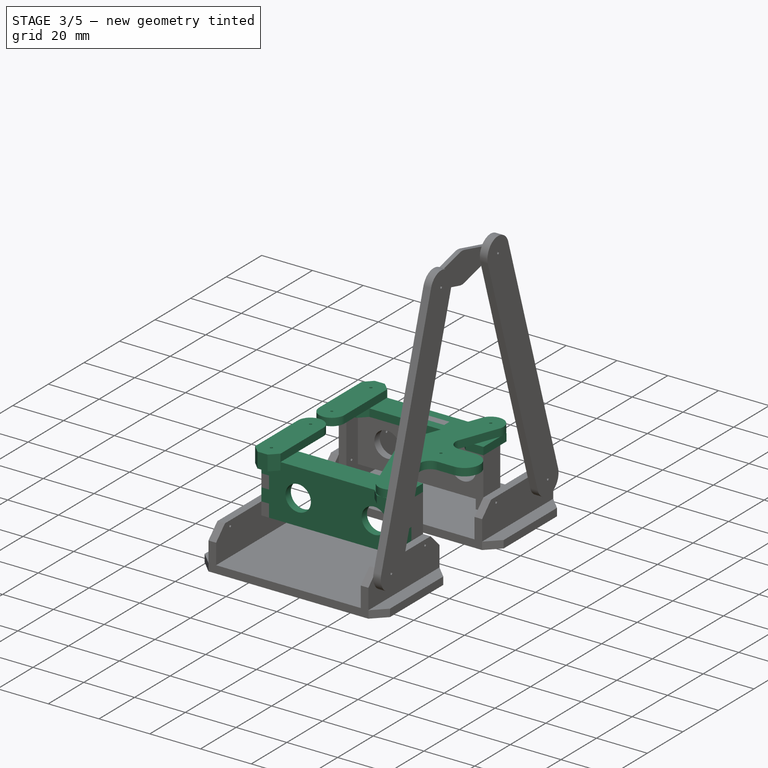
[diagram: stage 3 of 5 — iso view after this stage's code; geometry added in this stage tinted green]
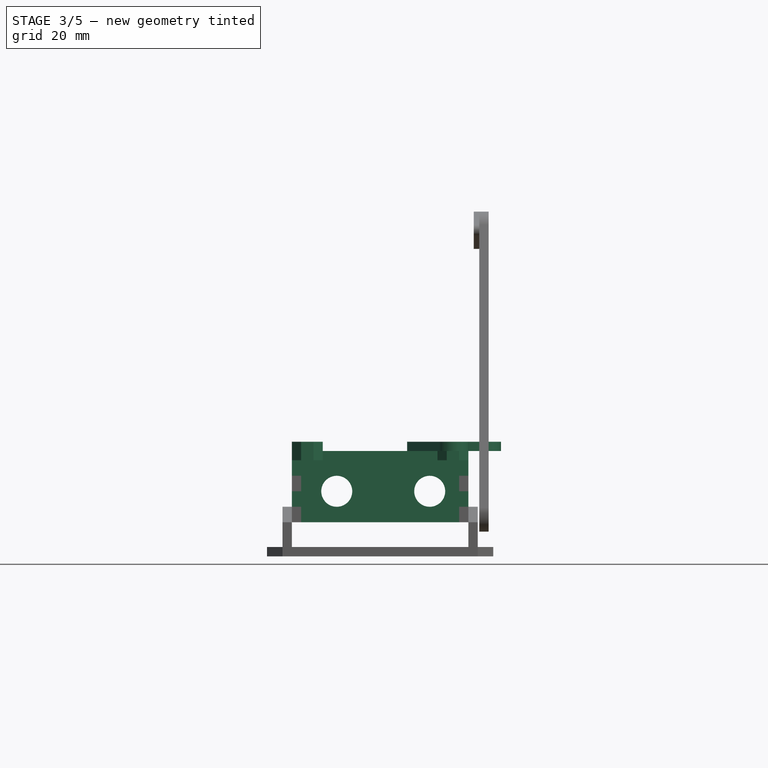
[diagram: stage 3 of 5 — front view after this stage's code; geometry added in this stage tinted green]
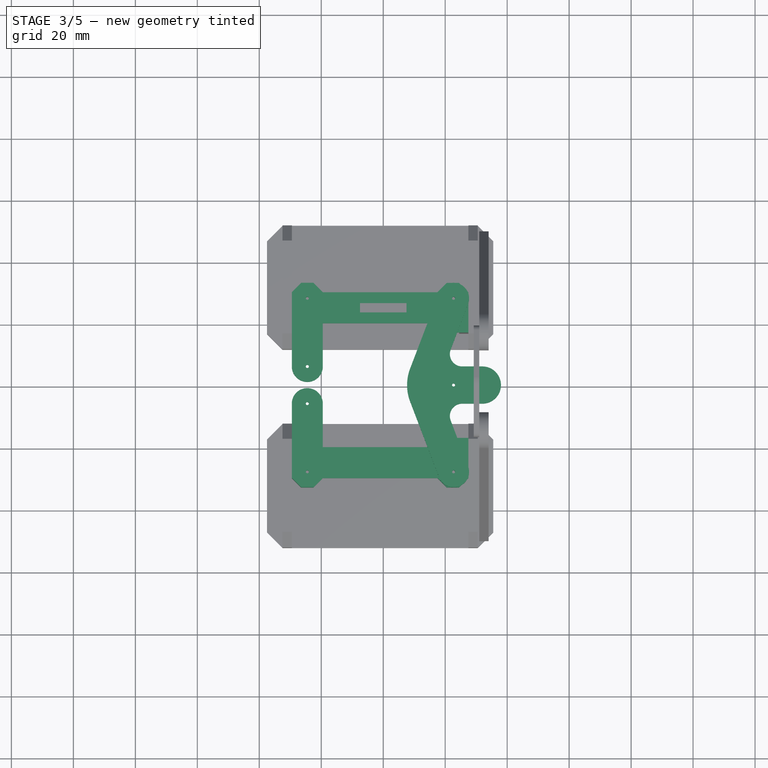
[diagram: stage 3 of 5 — top view after this stage's code; geometry added in this stage tinted green]
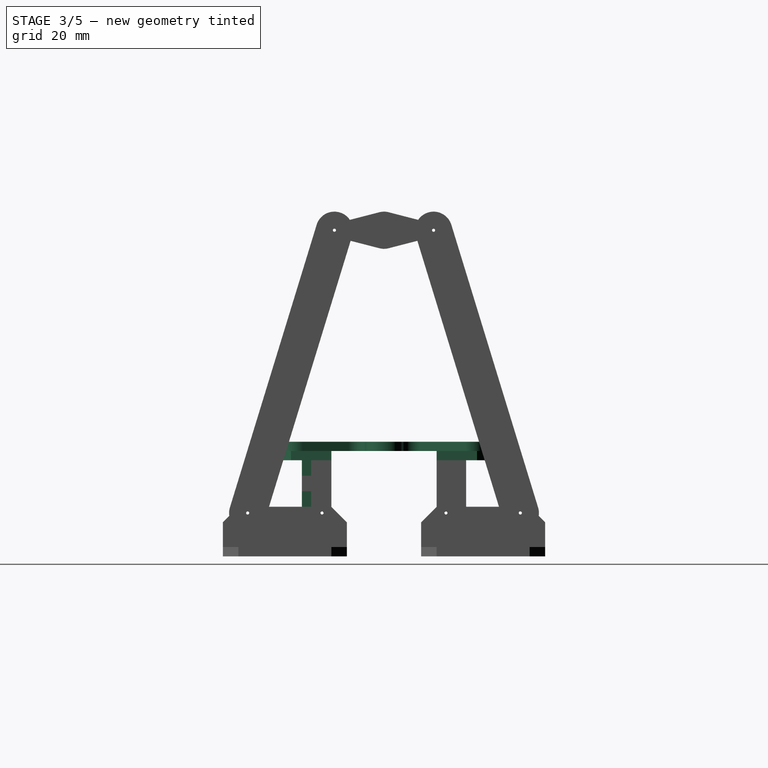
[diagram: stage 3 of 5 — right view after this stage's code; geometry added in this stage tinted green]
FEATURE [Sketcher::SketchObject] Sketch008
  Placement = pos=(0,0,-59) rot=(1,0,0;3.14159rad)
  sketch-geometry (31):
    g0: LineSegment StartX=-29.5 StartY=6 StartZ=0 EndX=-29.5 EndY=30 EndZ=0
    g1: LineSegment StartX=-29.5 StartY=30 StartZ=0 EndX=-26.5 EndY=33 EndZ=0
    g2: LineSegment StartX=-26.5 StartY=33 StartZ=0 EndX=-22.5 EndY=33 EndZ=0
    g3: LineSegment StartX=-22.5 StartY=33 StartZ=0 EndX=-19.5 EndY=30 EndZ=0
    g4: LineSegment StartX=-19.5 StartY=30 StartZ=0 EndX=-19.5 EndY=6 EndZ=0
    g5: LineSegment StartX=-29.5 StartY=-6 StartZ=0 EndX=-29.5 EndY=-30 EndZ=0
    g6: LineSegment StartX=-29.5 StartY=-30 StartZ=0 EndX=-26.5 EndY=-33 EndZ=0
    g7: LineSegment StartX=-26.5 StartY=-33 StartZ=0 EndX=-22.5 EndY=-33 EndZ=0
    g8: LineSegment StartX=-22.5 StartY=-33 StartZ=0 EndX=-19.5 EndY=-30 EndZ=0
    g9: LineSegment StartX=-19.5 StartY=-30 StartZ=0 EndX=-19.5 EndY=-6 EndZ=0
    g10: LineSegment StartX=18.0248 StartY=29.7727 StartZ=0 EndX=8.51722 EndY=4.88352 EndZ=0
    g11: LineSegment StartX=8.51722 StartY=-4.88352 StartZ=0 EndX=18.0248 EndY=-29.7727 EndZ=0
    g12: ArcOfCircle CenterX=22.7 CenterY=-28 CenterZ=0 NormalX=0 NormalY=0 NormalZ=1 Radius=5 StartAngle=3.50402 EndAngle=6.64561
    g13: ArcOfCircle CenterX=22.7 CenterY=28 CenterZ=0 NormalX=0 NormalY=0 NormalZ=1 Radius=5 StartAngle=5.92076 EndAngle=9.06235
    g14: ArcOfCircle CenterX=22.7 CenterY=0 CenterZ=0 NormalX=0 NormalY=0 NormalZ=1 Radius=15 StartAngle=2.80998 EndAngle=3.47321
    g15: ArcOfCircle CenterX=-24.5 CenterY=6 CenterZ=0 NormalX=0 NormalY=0 NormalZ=1 Radius=5 StartAngle=3.14159 EndAngle=6.28319
    g16: ArcOfCircle CenterX=-24.5 CenterY=-6 CenterZ=0 NormalX=0 NormalY=0 NormalZ=1 Radius=5 StartAngle=0 EndAngle=3.14159
    g17: Circle CenterX=-24.5 CenterY=-6 CenterZ=0 NormalX=0 NormalY=0 NormalZ=1 Radius=0.5
    g18: Circle CenterX=-24.5 CenterY=6 CenterZ=0 NormalX=0 NormalY=0 NormalZ=1 Radius=0.5
    g19: Circle CenterX=-24.5 CenterY=-28 CenterZ=0 NormalX=0 NormalY=0 NormalZ=1 Radius=0.5
    g20: Circle CenterX=-24.5 CenterY=28 CenterZ=0 NormalX=0 NormalY=0 NormalZ=1 Radius=0.5
    g21: ArcOfCircle CenterX=32 CenterY=0 CenterZ=0 NormalX=0 NormalY=0 NormalZ=1 Radius=6 StartAngle=4.71239 EndAngle=7.85398
    g22: LineSegment StartX=21.7657 StartY=-11.4335 StartZ=0 EndX=27.3752 EndY=-26.2273 EndZ=0
    g23: LineSegment StartX=21.7657 StartY=11.4335 StartZ=0 EndX=27.3752 EndY=26.2273 EndZ=0
    g24: ArcOfCircle CenterX=25.5 CenterY=10 CenterZ=0 NormalX=0 NormalY=0 NormalZ=1 Radius=4 StartAngle=2.77507 EndAngle=4.71239
    g25: ArcOfCircle CenterX=25.5 CenterY=-10 CenterZ=0 NormalX=0 NormalY=0 NormalZ=1 Radius=4 StartAngle=1.5708 EndAngle=3.50811
    g26: LineSegment StartX=32 StartY=6 StartZ=0 EndX=25.5 EndY=6 EndZ=0
    g27: LineSegment StartX=32 StartY=-6 StartZ=0 EndX=25.5 EndY=-6 EndZ=0
    g28: Circle CenterX=22.7 CenterY=28 CenterZ=0 NormalX=0 NormalY=0 NormalZ=1 Radius=0.5
    g29: Circle CenterX=22.7 CenterY=-28 CenterZ=0 NormalX=0 NormalY=0 NormalZ=1 Radius=0.5
    g30: Circle CenterX=22.7 CenterY=0 CenterZ=0 NormalX=0 NormalY=0 NormalZ=1 Radius=0.5
  constraints (97):
    c: DistanceX(g19,g12) = 47.2
    c: DistanceY(g12,g13) = 56
    c: DistanceX(g20,g13) = 47.2
    c: DistanceY(g15,g20) = 22
    c: DistanceY(g16,g15) = 12
    c: DistanceY(g19,g16) = 22
    c: Radius(g20) = 0.5
    c: Equal(g20,g18)
    c: Equal(g20,g17)
    c: Equal(g20,g19)
    c: Equal(g20,g29)
    c: Equal(g20,g28)
    c: DistanceX(g19,g-1) = 24.5
    c: Symmetric(g16,g15,g-1)
    c: Symmetric(g20,g19,g-1)
    c: Symmetric(g12,g13,g-1)
    c: Coincident(g29,g12)
    c: Equal(g12,g13)
    c: Coincident(g28,g13)
    c: Coincident(g18,g15)
    c: Equal(g16,g15)
    c: Symmetric(g16,g15,g-1)
    c: Coincident(g17,g16)
    c: Equal(g5,g9)
    c: Equal(g9,g0)
    c: Equal(g0,g4)
    c: DistanceY(g5,g5) = 24
    c: Angle(g16) = 3.14159
    c: Angle(g15) = 3.14159
    c: DistanceY(g0,g4) = 0
    c: DistanceY(g5,g9) = 0
    c: DistanceX(g6,g6) = 3
    c: DistanceX(g7,g7) = 4
    c: DistanceX(g8,g8) = 3
    c: Horizontal(g7)
    c: Vertical(g5)
    c: Vertical(g9)
    c: Vertical(g0)
    c: Vertical(g4)
    c: DistanceX(g3,g3) = 3
    c: DistanceX(g2,g2) = 4
    c: DistanceX(g1,g1) = 3
    c: Horizontal(g2)
    c: Coincident(g0,g1)
    c: Coincident(g3,g4)
    c: Coincident(g0,g15)
    c: Coincident(g4,g15)
    c: Coincident(g5,g16)
    c: Coincident(g9,g16)
    c: Coincident(g5,g6)
    c: Coincident(g8,g9)
    c: Coincident(g6,g7)
    c: Coincident(g7,g8)
    c: Coincident(g1,g2)
    c: Coincident(g2,g3)
    c: DistanceY(g1,g1) = 3
    c: DistanceY(g8,g8) = 3
    c: DistanceX(g-1,g14) = 22.7
    c: Radius(g14) = 15
    c: Angle(g14) = 0.663225
    c: Radius(g21) = 6
    c: Radius(g24) = 4
    c: Radius(g25) = 4
    c: DistanceX(g14,g21) = 9.3
    c: Angle(g21) = 3.14159
    c: DistanceY(g-1,g21) = 0
    c: DistanceY(g-1,g14) = 0
    c: Horizontal(g26)
    c: Horizontal(g27)
    c: Coincident(g21,g26)
    c: Coincident(g21,g27)
    c: Coincident(g25,g27)
    c: Coincident(g24,g26)
    c: Coincident(g23,g24)
    c: Coincident(g22,g25)
    c: Coincident(g10,g14)
    c: Coincident(g11,g14)
    c: Coincident(g10,g13)
    c: Coincident(g13,g23)
    c: Coincident(g11,g12)
    c: Coincident(g12,g22)
    c: DistanceX(g21,g21) = 0
    c: Symmetric(g25,g24,g-1)
    c: DistanceX(g25,g21) = 6.5
    c: Equal(g26,g27)
    c: DistanceX(g27,g27) = 6.5
    c: Angle(g25) = 1.93732
    c: Angle(g24) = 1.93732
    c: Radius(g12) = 5
    c: Angle(g12) = 3.14159
    c: Angle(g13) = 3.14159
    c: Symmetric(g10,g11,g-1)
    c: Equal(g10,g11)
    c: Equal(g23,g22)
    c: Tangent(g22,g12)
    c: Radius(g30) = 0.5
    c: Coincident(g30,g14)
FEATURE [PartDesign::Pad] Pad008
  Length = 3
  Length2 = 100
  Placement = pos=(0,0,-59) rot=(1,0,0;3.14159rad)
  Sketch = -> Sketch008
  Type = 0
FEATURE [Sketcher::SketchObject] Sketch009
  Placement = pos=(0,0,-62) rot=(1,0,0;3.14159rad)
  sketch-geometry (48):
    g0: LineSegment StartX=-29.5 StartY=30 StartZ=0 EndX=-26.5 EndY=33 EndZ=0
    g1: LineSegment StartX=-26.5 StartY=33 StartZ=0 EndX=-22.5 EndY=33 EndZ=0
    g2: LineSegment StartX=-22.5 StartY=33 StartZ=0 EndX=-19.5 EndY=30 EndZ=0
    g3: LineSegment StartX=-19.5 StartY=30 StartZ=0 EndX=17.5 EndY=30 EndZ=0
    g4: LineSegment StartX=17.5 StartY=30 StartZ=0 EndX=20.5 EndY=33 EndZ=0
    g5: LineSegment StartX=20.5 StartY=33 StartZ=0 EndX=24.5 EndY=33 EndZ=0
    g6: LineSegment StartX=24.5 StartY=33 StartZ=0 EndX=27.5 EndY=30 EndZ=0
    g7: LineSegment StartX=27.5 StartY=30 StartZ=0 EndX=27.5 EndY=20 EndZ=0
    g8: LineSegment StartX=24.5 StartY=17 StartZ=0 EndX=20.5 EndY=17 EndZ=0
    g9: LineSegment StartX=20.5 StartY=17 StartZ=0 EndX=17.5 EndY=20 EndZ=0
    g10: LineSegment StartX=17.5 StartY=20 StartZ=0 EndX=-19.5 EndY=20 EndZ=0
    g11: LineSegment StartX=-19.5 StartY=20 StartZ=0 EndX=-22.5 EndY=17 EndZ=0
    g12: LineSegment StartX=-22.5 StartY=17 StartZ=0 EndX=-26.5 EndY=17 EndZ=0
    g13: LineSegment StartX=-29.5 StartY=20 StartZ=0 EndX=-29.5 EndY=30 EndZ=0
    g14: LineSegment StartX=-7.5 StartY=26.5 StartZ=0 EndX=7.5 EndY=26.5 EndZ=0
    g15: LineSegment StartX=7.5 StartY=26.5 StartZ=0 EndX=7.5 EndY=23.5 EndZ=0
    g16: LineSegment StartX=7.5 StartY=23.5 StartZ=0 EndX=-7.5 EndY=23.5 EndZ=0
    g17: LineSegment StartX=-7.5 StartY=23.5 StartZ=0 EndX=-7.5 EndY=26.5 EndZ=0
    g18: LineSegment StartX=-19.5 StartY=-20 StartZ=0 EndX=17.5 EndY=-20 EndZ=0
    g19: LineSegment StartX=17.5 StartY=-20 StartZ=0 EndX=20.5 EndY=-17 EndZ=0
    g20: LineSegment StartX=20.5 StartY=-17 StartZ=0 EndX=24.5 EndY=-17 EndZ=0
    g21: LineSegment StartX=27.5 StartY=-20 StartZ=0 EndX=27.5 EndY=-30 EndZ=0
    g22: LineSegment StartX=27.5 StartY=-30 StartZ=0 EndX=24.5 EndY=-33 EndZ=0
    g23: LineSegment StartX=24.5 StartY=-33 StartZ=0 EndX=20.5 EndY=-33 EndZ=0
    g24: LineSegment StartX=20.5 StartY=-33 StartZ=0 EndX=17.5 EndY=-30 EndZ=0
    g25: LineSegment StartX=17.5 StartY=-30 StartZ=0 EndX=-19.5 EndY=-30 EndZ=0
    g26: LineSegment StartX=-19.5 StartY=-30 StartZ=0 EndX=-22.5 EndY=-33 EndZ=0
    g27: LineSegment StartX=-22.5 StartY=-33 StartZ=0 EndX=-26.5 EndY=-33 EndZ=0
    g28: LineSegment StartX=-26.5 StartY=-33 StartZ=0 EndX=-29.5 EndY=-30 EndZ=0
    g29: LineSegment StartX=-29.5 StartY=-30 StartZ=0 EndX=-29.5 EndY=-20 EndZ=0
    g30: LineSegment StartX=-26.5 StartY=-17 StartZ=0 EndX=-22.5 EndY=-17 EndZ=0
    g31: LineSegment StartX=-22.5 StartY=-17 StartZ=0 EndX=-19.5 EndY=-20 EndZ=0
    g32: LineSegment StartX=-7.5 StartY=-23.5 StartZ=0 EndX=7.5 EndY=-23.5 EndZ=0
    g33: LineSegment StartX=7.5 StartY=-23.5 StartZ=0 EndX=7.5 EndY=-26.5 EndZ=0
    g34: LineSegment StartX=7.5 StartY=-26.5 StartZ=0 EndX=-7.5 EndY=-26.5 EndZ=0
    g35: LineSegment StartX=-7.5 StartY=-26.5 StartZ=0 EndX=-7.5 EndY=-23.5 EndZ=0
    g36: Circle CenterX=-24.5 CenterY=28 CenterZ=0 NormalX=0 NormalY=0 NormalZ=1 Radius=0.5
    g37: Circle CenterX=22.7 CenterY=28 CenterZ=0 NormalX=0 NormalY=0 NormalZ=1 Radius=0.5
    g38: Circle CenterX=-24.5 CenterY=-28 CenterZ=0 NormalX=0 NormalY=0 NormalZ=1 Radius=0.5
    g39: Circle CenterX=22.7 CenterY=-28 CenterZ=0 NormalX=0 NormalY=0 NormalZ=1 Radius=0.5
    g40: LineSegment StartX=24.5 StartY=17 StartZ=0 EndX=27.5 EndY=17 EndZ=0
    g41: LineSegment StartX=27.5 StartY=20 StartZ=0 EndX=27.5 EndY=17 EndZ=0
    g42: LineSegment StartX=-26.5 StartY=17 StartZ=0 EndX=-29.5 EndY=17 EndZ=0
    g43: LineSegment StartX=-29.5 StartY=17 StartZ=0 EndX=-29.5 EndY=20 EndZ=0
    g44: LineSegment StartX=24.5 StartY=-17 StartZ=0 EndX=27.5 EndY=-17 EndZ=0
    g45: LineSegment StartX=27.5 StartY=-17 StartZ=0 EndX=27.5 EndY=-20 EndZ=0
    g46: LineSegment StartX=-26.5 StartY=-17 StartZ=0 EndX=-29.5 EndY=-17 EndZ=0
    g47: LineSegment StartX=-29.5 StartY=-17 StartZ=0 EndX=-29.5 EndY=-20 EndZ=0
  constraints (146):
    c: Coincident(g0,g1)
    c: Horizontal(g1)
    c: Coincident(g1,g2)
    c: Coincident(g2,g3)
    c: Horizontal(g3)
    c: Coincident(g3,g4)
    c: Coincident(g4,g5)
    c: Horizontal(g5)
    c: Coincident(g5,g6)
    c: Coincident(g6,g7)
    c: Vertical(g7)
    c: Horizontal(g8)
    c: Coincident(g8,g9)
    c: Coincident(g9,g10)
    c: Horizontal(g10)
    c: Coincident(g10,g11)
    c: Coincident(g11,g12)
    c: Horizontal(g12)
    c: Coincident(g13,g0)
    c: Vertical(g13)
    c: Equal(g8,g5)
    c: Equal(g5,g1)
    c: Equal(g1,g12)
    c: Equal(g10,g3)
    c: Equal(g13,g7)
    c: DistanceX(g10,g2) = 0
    c: DistanceY(g0,g6) = 0
    c: DistanceX(g0,g12) = 0
    c: Angle(g0) = 0.785398
    c: Angle(g2) = -0.785398
    c: Angle(g4) = 0.785398
    c: Angle(g6) = -0.785398
    c: Angle(g11) = -2.35619
    c: Angle(g9) = 2.35619
    c: DistanceX(g1,g1) = 4
    c: DistanceX(g0,g0) = 3
    c: DistanceY(g13,g13) = 10
    c: DistanceX(g11,g10) = 3
    c: DistanceX(g3,g4) = 3
    c: DistanceY(g-1,g2) = 30
    c: DistanceX(g2,g-1) = 19.5
    c: DistanceX(g0,g6) = 57
    c: Coincident(g14,g15)
    c: Coincident(g15,g16)
    c: Coincident(g16,g17)
    c: Coincident(g17,g14)
    c: Horizontal(g14)
    c: Horizontal(g16)
    c: Vertical(g15)
    c: Vertical(g17)
    c: DistanceY(g17,g17) = 3
    c: DistanceX(g14,g14) = 15
    c: Symmetric(g14,g14,g-2)
    c: DistanceY(g14,g2) = 3.5
    c: Horizontal(g18)
    c: Coincident(g18,g19)
    c: Coincident(g19,g20)
    c: Horizontal(g20)
    c: Vertical(g21)
    c: Coincident(g21,g22)
    c: Coincident(g22,g23)
    c: Horizontal(g23)
    c: Coincident(g23,g24)
    c: Coincident(g24,g25)
    c: Horizontal(g25)
    c: Coincident(g25,g26)
    c: Coincident(g26,g27)
    c: Horizontal(g27)
    c: Coincident(g27,g28)
    c: Coincident(g28,g29)
    c: Vertical(g29)
    c: Horizontal(g30)
    c: Coincident(g30,g31)
    c: Coincident(g31,g18)
    c: Equal(g18,g25)
    c: Equal(g29,g21)
    c: Equal(g30,g27)
    c: Equal(g27,g23)
    c: Equal(g23,g20)
    c: Equal(g18,g10)
    c: Equal(g20,g8)
    c: Equal(g21,g7)
    c: DistanceX(g25,g18) = 0
    c: Angle(g31) = -0.785398
    c: Angle(g19) = 0.785398
    c: Angle(g22) = -2.35619
    c: Angle(g24) = 2.35619
    c: Angle(g26) = -2.35619
    c: Angle(g28) = 2.35619
    c: DistanceX(g18,g19) = 3
    c: DistanceX(g26,g25) = 3
    c: DistanceX(g28,g27) = 3
    c: DistanceY(g21,g28) = 0
    c: Symmetric(g18,g10,g-1)
    c: Coincident(g32,g33)
    c: Coincident(g33,g34)
    c: Coincident(g34,g35)
    c: Coincident(g35,g32)
    c: Horizontal(g32)
    c: Horizontal(g34)
    c: Vertical(g33)
    c: Vertical(g35)
    c: Equal(g35,g17)
    c: Equal(g14,g32)
    c: Symmetric(g32,g32,g-2)
    c: DistanceY(g24,g33) = 3.5
    c: Radius(g37) = 0.5
    c: Equal(g37,g36)
    c: DistanceY(g37,g36) = 0
    c: DistanceY(g-1,g36) = 28
    c: DistanceX(g36,g-1) = 24.5
    c: DistanceX(g36,g37) = 47.2
    c: Radius(g38) = 0.5
    c: Equal(g38,g39)
    c: DistanceY(g38,g39) = 0
    c: DistanceX(g38,g36) = 0
    c: Symmetric(g36,g38,g-1)
    c: Symmetric(g39,g37,g-1)
    c: Horizontal(g40)
    c: Vertical(g41)
    c: Coincident(g40,g41)
    c: DistanceY(g41,g41) = 3
    c: DistanceX(g40,g40) = 3
    c: DistanceX(g8,g7) = 3
    c: DistanceY(g8,g7) = 3
    c: Coincident(g41,g7)
    c: Horizontal(g42)
    c: Coincident(g43,g42)
    c: Vertical(g43)
    c: DistanceX(g42,g42) = 3
    c: DistanceY(g43,g43) = 3
    c: Coincident(g42,g12)
    c: Horizontal(g44)
    c: Vertical(g45)
    c: Coincident(g44,g45)
    c: Coincident(g44,g20)
    c: Coincident(g45,g21)
    c: DistanceY(g45,g45) = 3
    c: DistanceX(g44,g44) = 3
    c: Horizontal(g46)
    c: Vertical(g47)
    c: DistanceY(g47,g47) = 3
    c: DistanceX(g46,g46) = 3
    c: Coincident(g47,g46)
    c: Coincident(g47,g29)
    c: Coincident(g30,g46)
FEATURE [PartDesign::Pad] Pad009
  Length = 3
  Length2 = 100
  Placement = pos=(0,0,-62) rot=(1,0,0;3.14159rad)
  Sketch = -> Sketch009
  Type = 0
FEATURE [Sketcher::SketchObject] Sketch010
  Placement = pos=(0,-23.5,0) rot=(1,0,0;1.5708rad)
  sketch-geometry (22):
    g0: LineSegment StartX=-29.5 StartY=-65 StartZ=0 EndX=-7.5 EndY=-65 EndZ=0
    g1: LineSegment StartX=-7.5 StartY=-65 StartZ=0 EndX=-7.5 EndY=-62 EndZ=0
    g2: LineSegment StartX=-7.5 StartY=-62 StartZ=0 EndX=7.5 EndY=-62 EndZ=0
    g3: LineSegment StartX=7.5 StartY=-62 StartZ=0 EndX=7.5 EndY=-65 EndZ=0
    g4: LineSegment StartX=7.5 StartY=-65 StartZ=0 EndX=27.5 EndY=-65 EndZ=0
    g5: LineSegment StartX=27.5 StartY=-65 StartZ=0 EndX=27.5 EndY=-70 EndZ=0
    g6: LineSegment StartX=27.5 StartY=-70 StartZ=0 EndX=24.5 EndY=-70 EndZ=0
    g7: LineSegment StartX=24.5 StartY=-70 StartZ=0 EndX=24.5 EndY=-75 EndZ=0
    g8: LineSegment StartX=24.5 StartY=-75 StartZ=0 EndX=27.5 EndY=-75 EndZ=0
    g9: LineSegment StartX=27.5 StartY=-75 StartZ=0 EndX=27.5 EndY=-80 EndZ=0
    g10: LineSegment StartX=27.5 StartY=-80 StartZ=0 EndX=24.5 EndY=-80 EndZ=0
    g11: LineSegment StartX=24.5 StartY=-80 StartZ=0 EndX=24.5 EndY=-85 EndZ=0
    g12: LineSegment StartX=24.5 StartY=-85 StartZ=0 EndX=-26.5 EndY=-85 EndZ=0
    g13: LineSegment StartX=-26.5 StartY=-85 StartZ=0 EndX=-26.5 EndY=-80 EndZ=0
    g14: LineSegment StartX=-26.5 StartY=-80 StartZ=0 EndX=-29.5 EndY=-80 EndZ=0
    g15: LineSegment StartX=-29.5 StartY=-80 StartZ=0 EndX=-29.5 EndY=-75 EndZ=0
    g16: LineSegment StartX=-29.5 StartY=-75 StartZ=0 EndX=-26.5 EndY=-75 EndZ=0
    g17: LineSegment StartX=-26.5 StartY=-75 StartZ=0 EndX=-26.5 EndY=-70 EndZ=0
    g18: LineSegment StartX=-26.5 StartY=-70 StartZ=0 EndX=-29.5 EndY=-70 EndZ=0
    g19: LineSegment StartX=-29.5 StartY=-70 StartZ=0 EndX=-29.5 EndY=-65 EndZ=0
    g20: Circle CenterX=-15 CenterY=-75 CenterZ=0 NormalX=0 NormalY=0 NormalZ=1 Radius=5
    g21: Circle CenterX=15 CenterY=-75 CenterZ=0 NormalX=0 NormalY=0 NormalZ=1 Radius=5
  constraints (66):
    c: Horizontal(g0)
    c: Coincident(g0,g1)
    c: Vertical(g1)
    c: Coincident(g1,g2)
    c: Horizontal(g2)
    c: Coincident(g2,g3)
    c: Vertical(g3)
    c: Coincident(g3,g4)
    c: Horizontal(g4)
    c: Coincident(g4,g5)
    c: Vertical(g5)
    c: Coincident(g5,g6)
    c: Coincident(g6,g7)
    c: Coincident(g7,g8)
    c: Horizontal(g8)
    c: Coincident(g8,g9)
    c: Vertical(g9)
    c: Coincident(g9,g10)
    c: Coincident(g10,g11)
    c: Coincident(g11,g12)
    c: Horizontal(g12)
    c: Coincident(g12,g13)
    c: Coincident(g13,g14)
    c: Coincident(g14,g15)
    c: Coincident(g15,g16)
    c: Coincident(g16,g17)
    c: Vertical(g17)
    c: Coincident(g17,g18)
    c: Horizontal(g18)
    c: Coincident(g18,g19)
    c: Coincident(g19,g0)
    c: Vertical(g19)
    c: Horizontal(g16)
    c: Vertical(g15)
    c: Horizontal(g14)
    c: Vertical(g13)
    c: Horizontal(g6)
    c: Vertical(g7)
    c: Horizontal(g10)
    c: Vertical(g11)
    c: DistanceX(g2,g2) = 15
    c: Equal(g13,g15)
    c: Equal(g15,g17)
    c: Equal(g17,g19)
    c: Equal(g19,g5)
    c: Equal(g5,g7)
    c: Equal(g7,g9)
    c: Equal(g9,g11)
    c: DistanceY(g13,g13) = 5
    c: Equal(g18,g16)
    c: Equal(g16,g14)
    c: Equal(g14,g6)
    c: Equal(g6,g8)
    c: Equal(g8,g10)
    c: DistanceX(g18,g18) = 3
    c: DistanceY(g1,g1) = 3
    c: Equal(g3,g1)
    c: DistanceX(g0,g-1) = 7.5
    c: DistanceX(g0,g-1) = 29.5
    c: DistanceX(g0,g4) = 57
    c: DistanceY(g1,g-1) = 62
    c: Equal(g20,g21)
    c: Radius(g20) = 5
    c: Symmetric(g20,g21,g-2)
    c: DistanceX(g20,g-1) = 15
    c: DistanceY(g20,g0) = 10
FEATURE [PartDesign::Pad] Pad010
  Length = 3
  Length2 = 100
  Placement = pos=(0,-23.5,0) rot=(1,0,0;1.5708rad)
  Sketch = -> Sketch010
  Type = 0
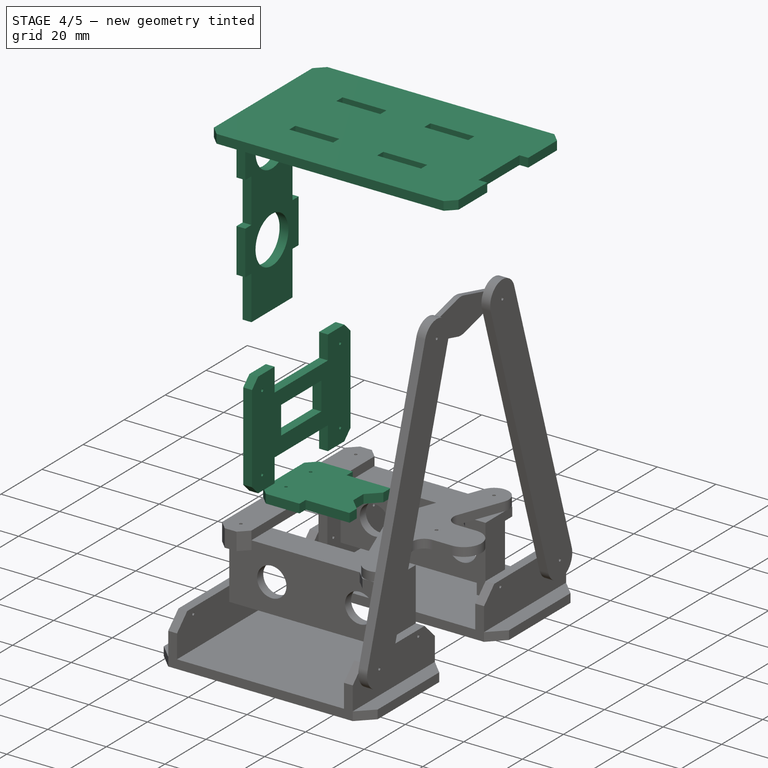
[diagram: stage 4 of 5 — iso view after this stage's code; geometry added in this stage tinted green]
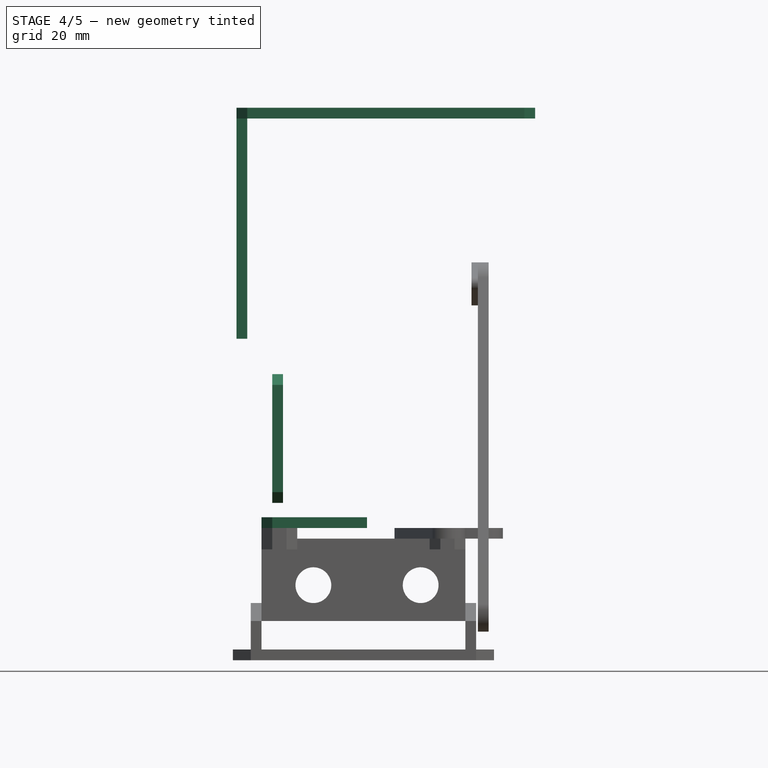
[diagram: stage 4 of 5 — front view after this stage's code; geometry added in this stage tinted green]
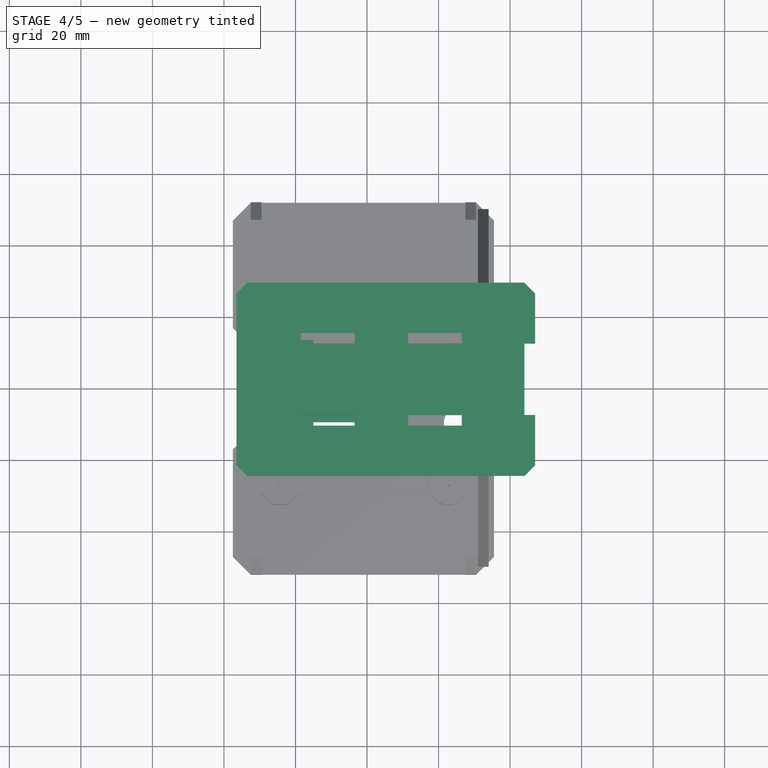
[diagram: stage 4 of 5 — top view after this stage's code; geometry added in this stage tinted green]
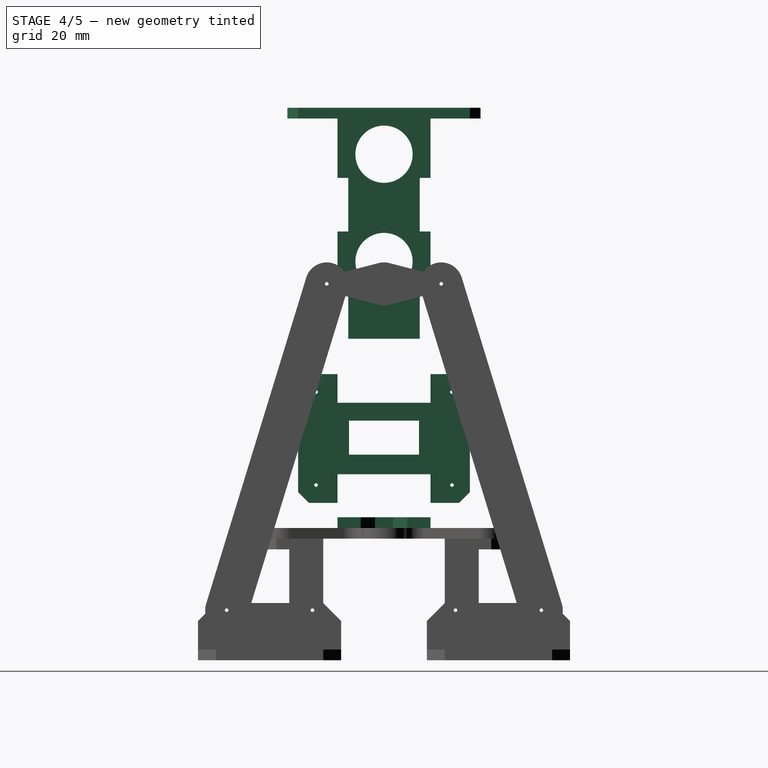
[diagram: stage 4 of 5 — right view after this stage's code; geometry added in this stage tinted green]
FEATURE [Sketcher::SketchObject] Sketch004
  Placement = pos=(0,0,55.5) rot=(0,0,1;0rad)
  sketch-geometry (28):
    g0: LineSegment StartX=-36.5 StartY=24 StartZ=0 EndX=-36.5 EndY=-24 EndZ=0
    g1: LineSegment StartX=-36.5 StartY=-24 StartZ=0 EndX=-33.5 EndY=-27 EndZ=0
    g2: LineSegment StartX=-33.5 StartY=-27 StartZ=0 EndX=44 EndY=-27 EndZ=0
    g3: LineSegment StartX=44 StartY=-27 StartZ=0 EndX=47 EndY=-24 EndZ=0
    g4: LineSegment StartX=47 StartY=-24 StartZ=0 EndX=47 EndY=-10 EndZ=0
    g5: LineSegment StartX=47 StartY=-10 StartZ=0 EndX=44 EndY=-10 EndZ=0
    g6: LineSegment StartX=44 StartY=-10 StartZ=0 EndX=44 EndY=10 EndZ=0
    g7: LineSegment StartX=44 StartY=10 StartZ=0 EndX=47 EndY=10 EndZ=0
    g8: LineSegment StartX=47 StartY=10 StartZ=0 EndX=47 EndY=24 EndZ=0
    g9: LineSegment StartX=47 StartY=24 StartZ=0 EndX=44 EndY=27 EndZ=0
    g10: LineSegment StartX=44 StartY=27 StartZ=0 EndX=-33.5 EndY=27 EndZ=0
    g11: LineSegment StartX=-33.5 StartY=27 StartZ=0 EndX=-36.5 EndY=24 EndZ=0
    g12: LineSegment StartX=-18.5 StartY=13 StartZ=0 EndX=-3.5 EndY=13 EndZ=0
    g13: LineSegment StartX=-3.5 StartY=13 StartZ=0 EndX=-3.5 EndY=10 EndZ=0
    g14: LineSegment StartX=-3.5 StartY=10 StartZ=0 EndX=-18.5 EndY=10 EndZ=0
    g15: LineSegment StartX=-18.5 StartY=10 StartZ=0 EndX=-18.5 EndY=13 EndZ=0
    g16: LineSegment StartX=11.5 StartY=13 StartZ=0 EndX=26.5 EndY=13 EndZ=0
    g17: LineSegment StartX=26.5 StartY=13 StartZ=0 EndX=26.5 EndY=10 EndZ=0
    g18: LineSegment StartX=26.5 StartY=10 StartZ=0 EndX=11.5 EndY=10 EndZ=0
    g19: LineSegment StartX=11.5 StartY=10 StartZ=0 EndX=11.5 EndY=13 EndZ=0
    g20: LineSegment StartX=-18.5 StartY=-10 StartZ=0 EndX=-3.5 EndY=-10 EndZ=0
    g21: LineSegment StartX=-3.5 StartY=-10 StartZ=0 EndX=-3.5 EndY=-13 EndZ=0
    g22: LineSegment StartX=-3.5 StartY=-13 StartZ=0 EndX=-18.5 EndY=-13 EndZ=0
    g23: LineSegment StartX=-18.5 StartY=-13 StartZ=0 EndX=-18.5 EndY=-10 EndZ=0
    g24: LineSegment StartX=11.5 StartY=-10 StartZ=0 EndX=26.5 EndY=-10 EndZ=0
    g25: LineSegment StartX=26.5 StartY=-10 StartZ=0 EndX=26.5 EndY=-13 EndZ=0
    g26: LineSegment StartX=26.5 StartY=-13 StartZ=0 EndX=11.5 EndY=-13 EndZ=0
    g27: LineSegment StartX=11.5 StartY=-13 StartZ=0 EndX=11.5 EndY=-10 EndZ=0
  constraints (83):
    c: Vertical(g0)
    c: Coincident(g0,g1)
    c: Coincident(g1,g2)
    c: Horizontal(g2)
    c: Coincident(g2,g3)
    c: Coincident(g3,g4)
    c: Vertical(g4)
    c: Coincident(g4,g5)
    c: Coincident(g5,g6)
    c: Vertical(g6)
    c: Coincident(g6,g7)
    c: Horizontal(g7)
    c: Coincident(g7,g8)
    c: Coincident(g8,g9)
    c: Coincident(g9,g10)
    c: Horizontal(g10)
    c: Coincident(g10,g11)
    c: Coincident(g11,g0)
    c: Horizontal(g5)
    c: Vertical(g8)
    c: Angle(g11) = -2.35619
    c: Angle(g9) = 2.35619
    c: Angle(g1) = -0.785398
    c: Angle(g3) = 0.785398
    c: Symmetric(g7,g4,g-1)
    c: DistanceX(g7,g7) = 3
    c: DistanceY(g6,g6) = 20
    c: Equal(g8,g4)
    c: DistanceY(g8,g8) = 14
    c: DistanceX(g0,g8) = 83.5
    c: DistanceY(g8,g9) = 3
    c: DistanceY(g2,g3) = 3
    c: DistanceY(g1,g0) = 3
    c: DistanceY(g0,g10) = 3
    c: DistanceX(g-1,g8) = 47
    c: Coincident(g12,g13)
    c: Coincident(g13,g14)
    c: Coincident(g14,g15)
    c: Coincident(g15,g12)
    c: Horizontal(g12)
    c: Horizontal(g14)
    c: Vertical(g13)
    c: Vertical(g15)
    c: Coincident(g16,g17)
    c: Coincident(g17,g18)
    c: Coincident(g18,g19)
    c: Coincident(g19,g16)
    c: Horizontal(g16)
    c: Horizontal(g18)
    c: Vertical(g17)
    c: Vertical(g19)
    c: Coincident(g20,g21)
    c: Coincident(g21,g22)
    c: Coincident(g22,g23)
    c: Coincident(g23,g20)
    c: Horizontal(g20)
    c: Horizontal(g22)
    c: Vertical(g21)
    c: Vertical(g23)
    c: Coincident(g24,g25)
    c: Coincident(g25,g26)
    c: Coincident(g26,g27)
    c: Coincident(g27,g24)
    c: Horizontal(g24)
    c: Horizontal(g26)
    c: Vertical(g25)
    c: Vertical(g27)
    c: Equal(g14,g20)
    c: Equal(g20,g24)
    c: Equal(g24,g18)
    c: Equal(g15,g23)
    c: Equal(g23,g27)
    c: Equal(g27,g19)
    c: DistanceY(g15,g15) = 3
    c: DistanceX(g14,g14) = 15
    c: DistanceY(g13,g18) = 0
    c: DistanceY(g24,g20) = 0
    c: DistanceX(g13,g20) = 0
    c: DistanceX(g18,g24) = 0
    c: DistanceY(g20,g13) = 20
    c: Symmetric(g13,g20,g-1)
    c: DistanceX(g13,g18) = 15
    c: DistanceX(g-1,g18) = 11.5
FEATURE [PartDesign::Pad] Pad004
  Length = 3
  Length2 = 100
  Placement = pos=(0,0,55.5) rot=(0,0,1;0rad)
  Sketch = -> Sketch004
  Type = 0
FEATURE [Sketcher::SketchObject] Sketch005
  Placement = pos=(-33.5,0,0) rot=(0.57735,-0.57735,-0.57735;2.0944rad)
  sketch-geometry (18):
    g0: LineSegment StartX=-13 StartY=55.5 StartZ=0 EndX=13 EndY=55.5 EndZ=0
    g1: LineSegment StartX=13 StartY=55.5 StartZ=0 EndX=13 EndY=38.9 EndZ=0
    g2: LineSegment StartX=13 StartY=38.9 StartZ=0 EndX=10 EndY=38.9 EndZ=0
    g3: LineSegment StartX=10 StartY=38.9 StartZ=0 EndX=10 EndY=23.9 EndZ=0
    g4: LineSegment StartX=10 StartY=23.9 StartZ=0 EndX=13 EndY=23.9 EndZ=0
    g5: LineSegment StartX=13 StartY=23.9 StartZ=0 EndX=13 EndY=8.9 EndZ=0
    g6: LineSegment StartX=13 StartY=8.9 StartZ=0 EndX=10 EndY=8.9 EndZ=0
    g7: LineSegment StartX=10 StartY=8.9 StartZ=0 EndX=10 EndY=-6.1 EndZ=0
    g8: LineSegment StartX=10 StartY=-6.1 StartZ=0 EndX=-10 EndY=-6.1 EndZ=0
    g9: LineSegment StartX=-10 StartY=-6.1 StartZ=0 EndX=-10 EndY=8.9 EndZ=0
    g10: LineSegment StartX=-10 StartY=8.9 StartZ=0 EndX=-13 EndY=8.9 EndZ=0
    g11: LineSegment StartX=-13 StartY=8.9 StartZ=0 EndX=-13 EndY=23.9 EndZ=0
    g12: LineSegment StartX=-13 StartY=23.9 StartZ=0 EndX=-10 EndY=23.9 EndZ=0
    g13: LineSegment StartX=-10 StartY=23.9 StartZ=0 EndX=-10 EndY=38.9 EndZ=0
    g14: LineSegment StartX=-10 StartY=38.9 StartZ=0 EndX=-13 EndY=38.9 EndZ=0
    g15: LineSegment StartX=-13 StartY=38.9 StartZ=0 EndX=-13 EndY=55.5 EndZ=0
    g16: Circle CenterX=0 CenterY=45.5 CenterZ=0 NormalX=0 NormalY=0 NormalZ=1 Radius=8
    g17: Circle CenterX=0 CenterY=15.5 CenterZ=0 NormalX=0 NormalY=0 NormalZ=1 Radius=8
  constraints (54):
    c: Coincident(g0,g1)
    c: Vertical(g1)
    c: Coincident(g1,g2)
    c: Coincident(g2,g3)
    c: Vertical(g3)
    c: Coincident(g3,g4)
    c: Horizontal(g4)
    c: Coincident(g4,g5)
    c: Vertical(g5)
    c: Coincident(g5,g6)
    c: Coincident(g6,g7)
    c: Vertical(g7)
    c: Coincident(g7,g8)
    c: Horizontal(g8)
    c: Coincident(g8,g9)
    c: Vertical(g9)
    c: Coincident(g9,g10)
    c: Coincident(g10,g11)
    c: Vertical(g11)
    c: Coincident(g11,g12)
    c: Horizontal(g12)
    c: Coincident(g12,g13)
    c: Coincident(g13,g14)
    c: Coincident(g14,g15)
    c: Coincident(g15,g0)
    c: Vertical(g15)
    c: Horizontal(g14)
    c: Vertical(g13)
    c: Horizontal(g10)
    c: Horizontal(g6)
    c: Horizontal(g2)
    c: Equal(g14,g2)
    c: Equal(g2,g4)
    c: Equal(g4,g12)
    c: Equal(g12,g10)
    c: Equal(g10,g6)
    c: DistanceX(g14,g14) = 3
    c: Symmetric(g0,g0,g-2)
    c: DistanceX(g0,g0) = 26
    c: DistanceY(g15,g15) = 16.6
    c: Equal(g15,g1)
    c: Equal(g13,g3)
    c: DistanceY(g13,g13) = 15
    c: Equal(g11,g5)
    c: DistanceY(g11,g11) = 15
    c: Equal(g9,g7)
    c: DistanceY(g9,g9) = 15
    c: DistanceY(g-1,g0) = 55.5
    c: Radius(g16) = 8
    c: Equal(g16,g17)
    c: DistanceX(g17,g16) = 0
    c: DistanceY(g17,g16) = 30
    c: DistanceX(g16,g-1) = 0
    c: DistanceY(g16,g0) = 10
FEATURE [PartDesign::Pad] Pad005
  Length = 3
  Length2 = 100
  Placement = pos=(-33.5,0,0) rot=(0.57735,-0.57735,-0.57735;2.0944rad)
  Sketch = -> Sketch005
  Type = 0
FEATURE [Sketcher::SketchObject] Sketch006
  Placement = pos=(-23.5,0,0) rot=(0.57735,-0.57735,-0.57735;2.0944rad)
  sketch-geometry (24):
    g0: LineSegment StartX=-13 StartY=-24 StartZ=0 EndX=13 EndY=-24 EndZ=0
    g1: LineSegment StartX=13 StartY=-24 StartZ=0 EndX=13 EndY=-16 EndZ=0
    g2: LineSegment StartX=13 StartY=-16 StartZ=0 EndX=21 EndY=-16 EndZ=0
    g3: LineSegment StartX=21 StartY=-16 StartZ=0 EndX=24 EndY=-19 EndZ=0
    g4: LineSegment StartX=24 StartY=-19 StartZ=0 EndX=24 EndY=-49 EndZ=0
    g5: LineSegment StartX=24 StartY=-49 StartZ=0 EndX=21 EndY=-52 EndZ=0
    g6: LineSegment StartX=21 StartY=-52 StartZ=0 EndX=13 EndY=-52 EndZ=0
    g7: LineSegment StartX=13 StartY=-52 StartZ=0 EndX=13 EndY=-44 EndZ=0
    g8: LineSegment StartX=13 StartY=-44 StartZ=0 EndX=-13 EndY=-44 EndZ=0
    g9: LineSegment StartX=-13 StartY=-44 StartZ=0 EndX=-13 EndY=-52 EndZ=0
    g10: LineSegment StartX=-13 StartY=-52 StartZ=0 EndX=-21 EndY=-52 EndZ=0
    g11: LineSegment StartX=-21 StartY=-52 StartZ=0 EndX=-24 EndY=-49 EndZ=0
    g12: LineSegment StartX=-24 StartY=-49 StartZ=0 EndX=-24 EndY=-19 EndZ=0
    g13: LineSegment StartX=-24 StartY=-19 StartZ=0 EndX=-21 EndY=-16 EndZ=0
    g14: LineSegment StartX=-21 StartY=-16 StartZ=0 EndX=-13 EndY=-16 EndZ=0
    g15: LineSegment StartX=-13 StartY=-16 StartZ=0 EndX=-13 EndY=-24 EndZ=0
    g16: Circle CenterX=19 CenterY=-21 CenterZ=0 NormalX=0 NormalY=0 NormalZ=1 Radius=0.5
    g17: Circle CenterX=19 CenterY=-47 CenterZ=0 NormalX=0 NormalY=0 NormalZ=1 Radius=0.5
    g18: Circle CenterX=-19 CenterY=-47 CenterZ=0 NormalX=0 NormalY=0 NormalZ=1 Radius=0.5
    g19: Circle CenterX=-19 CenterY=-21 CenterZ=0 NormalX=0 NormalY=0 NormalZ=1 Radius=0.5
    g20: LineSegment StartX=-9.8 StartY=-29 StartZ=0 EndX=9.8 EndY=-29 EndZ=0
    g21: LineSegment StartX=9.8 StartY=-29 StartZ=0 EndX=9.8 EndY=-38.5 EndZ=0
    g22: LineSegment StartX=9.8 StartY=-38.5 StartZ=0 EndX=-9.8 EndY=-38.5 EndZ=0
    g23: LineSegment StartX=-9.8 StartY=-38.5 StartZ=0 EndX=-9.8 EndY=-29 EndZ=0
  constraints (71):
    c: Coincident(g0,g1)
    c: Vertical(g1)
    c: Coincident(g1,g2)
    c: Horizontal(g2)
    c: Coincident(g2,g3)
    c: Coincident(g3,g4)
    c: Vertical(g4)
    c: Coincident(g4,g5)
    c: Coincident(g5,g6)
    c: Horizontal(g6)
    c: Coincident(g6,g7)
    c: Vertical(g7)
    c: Coincident(g7,g8)
    c: Horizontal(g8)
    c: Coincident(g8,g9)
    c: Vertical(g9)
    c: Coincident(g9,g10)
    c: Coincident(g10,g11)
    c: Coincident(g11,g12)
    c: Vertical(g12)
    c: Coincident(g12,g13)
    c: Coincident(g13,g14)
    c: Horizontal(g14)
    c: Coincident(g14,g15)
    c: Coincident(g15,g0)
    c: Vertical(g15)
    c: Horizontal(g10)
    c: Equal(g0,g8)
    c: Equal(g15,g9)
    c: Equal(g9,g7)
    c: Equal(g7,g1)
    c: Equal(g14,g10)
    c: Equal(g10,g6)
    c: Equal(g6,g2)
    c: Equal(g12,g4)
    c: Angle(g13) = 0.785398
    c: Angle(g3) = -0.785398
    c: Angle(g5) = -2.35619
    c: Angle(g11) = 2.35619
    c: DistanceX(g0,g0) = 26
    c: Symmetric(g0,g0,g-2)
    c: DistanceX(g0,g8) = 0
    c: DistanceY(g8,g0) = 20
    c: DistanceY(g15,g15) = 8
    c: DistanceX(g14,g14) = 8
    c: DistanceX(g12,g13) = 3
    c: DistanceY(g0,g-1) = 24
    c: Radius(g19) = 0.5
    c: Equal(g19,g18)
    c: Equal(g19,g17)
    c: Equal(g19,g16)
    c: DistanceX(g19,g18) = 0
    c: DistanceY(g18,g17) = 0
    c: DistanceX(g17,g16) = 0
    c: DistanceY(g16,g19) = 0
    c: Symmetric(g19,g16,g-2)
    c: DistanceY(g16,g2) = 5
    c: DistanceX(g16,g3) = 5
    c: DistanceY(g5,g17) = 5
    c: Coincident(g20,g21)
    c: Coincident(g21,g22)
    c: Coincident(g22,g23)
    c: Coincident(g23,g20)
    c: Horizontal(g20)
    c: Horizontal(g22)
    c: Vertical(g21)
    c: Vertical(g23)
    c: Symmetric(g20,g20,g-2)
    c: DistanceX(g20,g-1) = 9.8
    c: DistanceY(g22,g20) = 9.5
    c: DistanceY(g20,g0) = 5
FEATURE [PartDesign::Pad] Pad006
  Length = 3
  Length2 = 100
  Placement = pos=(-23.5,0,0) rot=(0.57735,-0.57735,-0.57735;2.0944rad)
  Sketch = -> Sketch006
  Type = 0
FEATURE [Sketcher::SketchObject] Sketch007
  Placement = pos=(0,0,-56) rot=(1,0,0;3.14159rad)
  sketch-geometry (16):
    g0: LineSegment StartX=-26.5 StartY=13 StartZ=0 EndX=-15 EndY=13 EndZ=0
    g1: LineSegment StartX=-15 StartY=13 StartZ=0 EndX=-15 EndY=10 EndZ=0
    g2: LineSegment StartX=-15 StartY=10 StartZ=0 EndX=0 EndY=10 EndZ=0
    g3: LineSegment StartX=0 StartY=10 StartZ=0 EndX=0 EndY=6.5 EndZ=0
    g4: LineSegment StartX=0 StartY=6.5 StartZ=0 EndX=-4 EndY=2.5 EndZ=0
    g5: LineSegment StartX=-4 StartY=2.5 StartZ=0 EndX=-4 EndY=-2.5 EndZ=0
    g6: LineSegment StartX=-4 StartY=-2.5 StartZ=0 EndX=0 EndY=-6.5 EndZ=0
    g7: LineSegment StartX=0 StartY=-6.5 StartZ=0 EndX=0 EndY=-10 EndZ=0
    g8: LineSegment StartX=0 StartY=-10 StartZ=0 EndX=-15 EndY=-10 EndZ=0
    g9: LineSegment StartX=-15 StartY=-10 StartZ=0 EndX=-15 EndY=-13 EndZ=0
    g10: LineSegment StartX=-15 StartY=-13 StartZ=0 EndX=-26.5 EndY=-13 EndZ=0
    g11: LineSegment StartX=-26.5 StartY=-13 StartZ=0 EndX=-29.5 EndY=-10 EndZ=0
    g12: LineSegment StartX=-29.5 StartY=-10 StartZ=0 EndX=-29.5 EndY=10 EndZ=0
    g13: LineSegment StartX=-29.5 StartY=10 StartZ=0 EndX=-26.5 EndY=13 EndZ=0
    g14: Circle CenterX=-24.5 CenterY=6 CenterZ=0 NormalX=0 NormalY=0 NormalZ=1 Radius=0.5
    g15: Circle CenterX=-24.5 CenterY=-6 CenterZ=0 NormalX=0 NormalY=0 NormalZ=1 Radius=0.5
  constraints (47):
    c: Horizontal(g0)
    c: Coincident(g0,g1)
    c: Coincident(g1,g2)
    c: PointOnObject(g2,g-2)
    c: Horizontal(g2)
    c: Coincident(g2,g3)
    c: PointOnObject(g3,g-2)
    c: Coincident(g3,g4)
    c: Coincident(g4,g5)
    c: Vertical(g5)
    c: Coincident(g5,g6)
    c: PointOnObject(g6,g-2)
    c: Coincident(g6,g7)
    c: Coincident(g7,g8)
    c: Horizontal(g8)
    c: Coincident(g8,g9)
    c: Vertical(g9)
    c: Coincident(g9,g10)
    c: Coincident(g10,g11)
    c: Coincident(g11,g12)
    c: Vertical(g12)
    c: Coincident(g12,g13)
    c: Coincident(g13,g0)
    c: Horizontal(g10)
    c: Vertical(g1)
    c: Vertical(g7)
    c: Equal(g3,g7)
    c: Equal(g9,g1)
    c: Equal(g2,g8)
    c: Equal(g0,g10)
    c: DistanceY(g1,g1) = 3
    c: DistanceX(g2,g2) = 15
    c: Angle(g4) = -2.35619
    c: Angle(g6) = -0.785398
    c: DistanceY(g7,g2) = 20
    c: Symmetric(g5,g4,g-1)
    c: DistanceX(g5,g6) = 4
    c: DistanceY(g5,g4) = 5
    c: DistanceX(g0,g0) = 11.5
    c: Angle(g13) = 0.785398
    c: Angle(g11) = 2.35619
    c: DistanceX(g12,g0) = 3
    c: Radius(g14) = 0.5
    c: Equal(g14,g15)
    c: Symmetric(g14,g15,g-1)
    c: DistanceY(g-1,g14) = 6
    c: DistanceX(g14,g-1) = 24.5
FEATURE [PartDesign::Pad] Pad007
  Length = 3
  Length2 = 100
  Placement = pos=(0,0,-56) rot=(1,0,0;3.14159rad)
  Sketch = -> Sketch007
  Type = 0
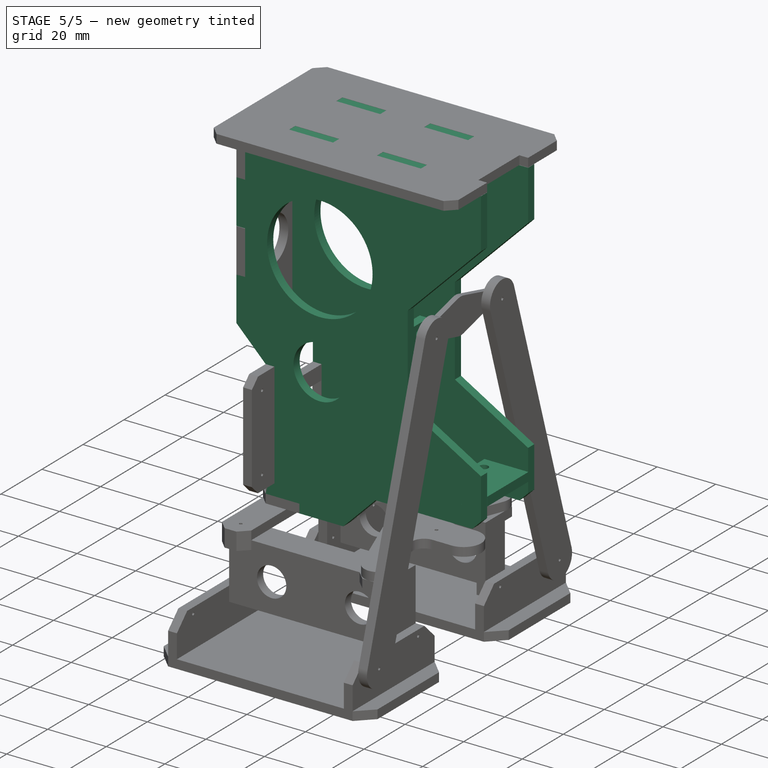
[diagram: stage 5 of 5 — iso view after this stage's code; geometry added in this stage tinted green]
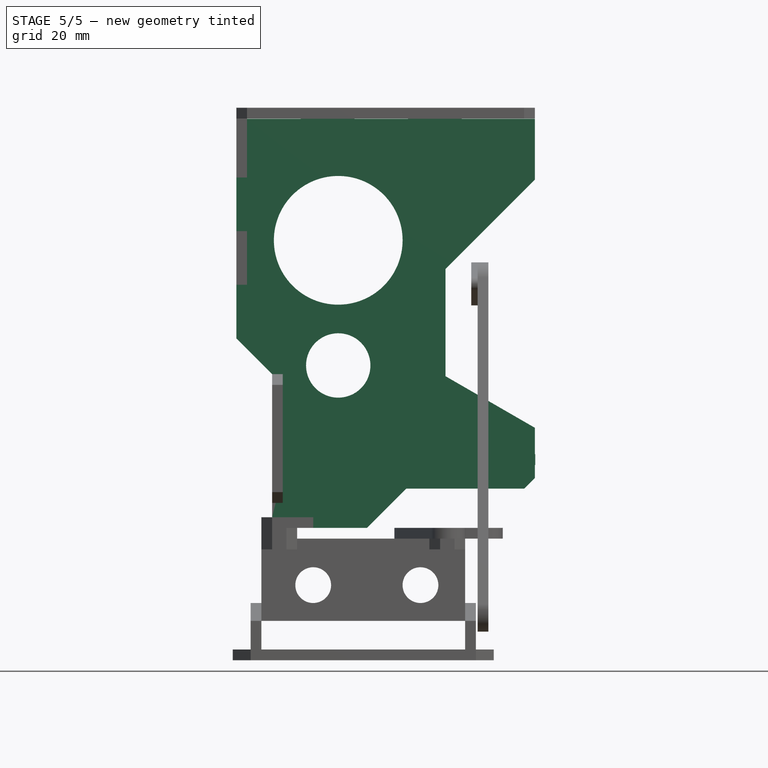
[diagram: stage 5 of 5 — front view after this stage's code; geometry added in this stage tinted green]
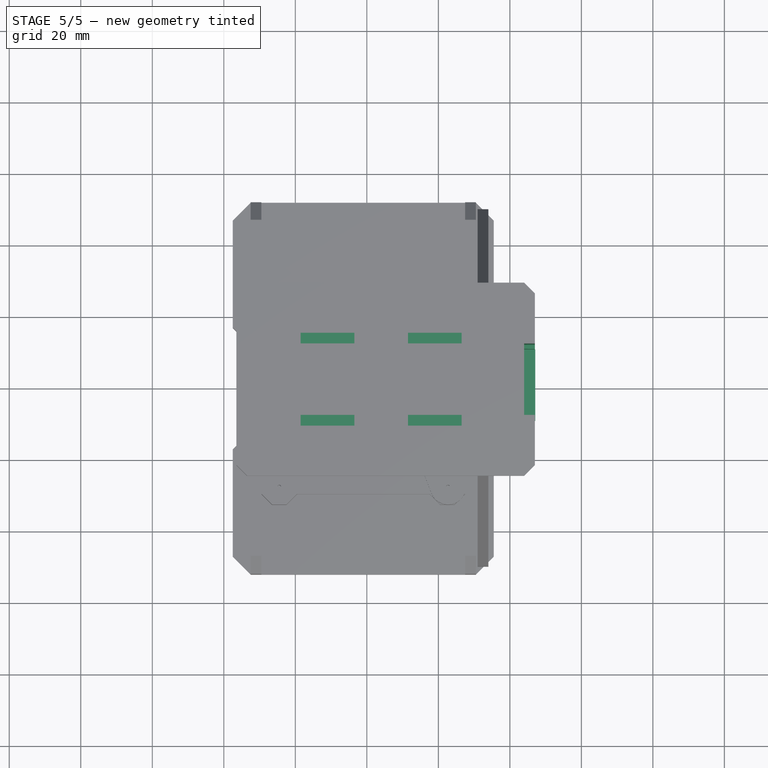
[diagram: stage 5 of 5 — top view after this stage's code; geometry added in this stage tinted green]
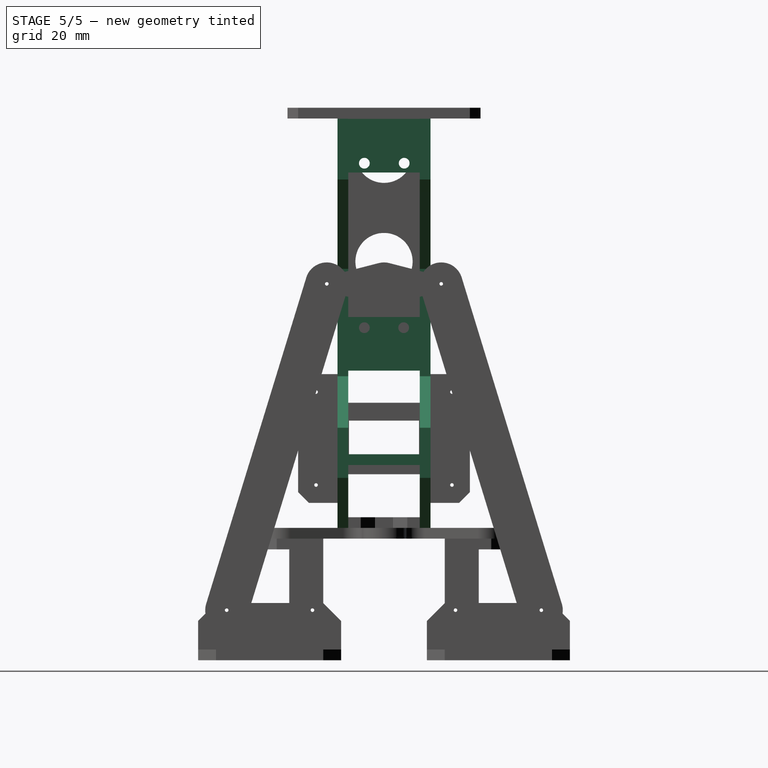
[diagram: stage 5 of 5 — right view after this stage's code; geometry added in this stage tinted green]
FEATURE [Sketcher::SketchObject] Sketch
  Placement = pos=(13,9.779,0) rot=(0,-1,0;1.5708rad)
  sketch-geometry (28):
    g0: LineSegment StartX=-15 StartY=0.221 StartZ=0 EndX=-15 EndY=-19.779 EndZ=0
    g1: LineSegment StartX=0 StartY=-19.779 StartZ=0 EndX=0 EndY=0.221 EndZ=0
    g2: LineSegment StartX=55.4 StartY=0.221 StartZ=0 EndX=55.4 EndY=-19.779 EndZ=0
    g3: LineSegment StartX=40.4 StartY=-19.779 StartZ=0 EndX=40.4 EndY=0.221 EndZ=0
    g4: LineSegment StartX=-10 StartY=-22.779 StartZ=0 EndX=-5 EndY=-22.779 EndZ=0
    g5: LineSegment StartX=-5 StartY=-22.779 StartZ=0 EndX=-5 EndY=-19.779 EndZ=0
    g6: LineSegment StartX=-10 StartY=-19.779 StartZ=0 EndX=-10 EndY=-22.779 EndZ=0
    g7: LineSegment StartX=-10 StartY=3.221 StartZ=0 EndX=-5 EndY=3.221 EndZ=0
    g8: LineSegment StartX=-5 StartY=3.221 StartZ=0 EndX=-5 EndY=0.221 EndZ=0
    g9: LineSegment StartX=-10 StartY=0.221 StartZ=0 EndX=-10 EndY=3.221 EndZ=0
    g10: LineSegment StartX=45.4 StartY=3.221 StartZ=0 EndX=50.4 EndY=3.221 EndZ=0
    g11: LineSegment StartX=50.4 StartY=3.221 StartZ=0 EndX=50.4 EndY=0.221 EndZ=0
    g12: LineSegment StartX=45.4 StartY=0.221 StartZ=0 EndX=45.4 EndY=3.221 EndZ=0
    g13: LineSegment StartX=50.4 StartY=-19.779 StartZ=0 EndX=50.4 EndY=-22.779 EndZ=0
    g14: LineSegment StartX=50.4 StartY=-22.779 StartZ=0 EndX=45.4 EndY=-22.779 EndZ=0
    g15: LineSegment StartX=45.4 StartY=-22.779 StartZ=0 EndX=45.4 EndY=-19.779 EndZ=0
    g16: Circle CenterX=-3 CenterY=-4.279 CenterZ=0 NormalX=0 NormalY=0 NormalZ=1 Radius=1.5
    g17: Circle CenterX=-3 CenterY=-15.279 CenterZ=0 NormalX=0 NormalY=0 NormalZ=1 Radius=1.5
    g18: Circle CenterX=43 CenterY=-4.139 CenterZ=0 NormalX=0 NormalY=0 NormalZ=1 Radius=1.5
    g19: Circle CenterX=43 CenterY=-15.279 CenterZ=0 NormalX=0 NormalY=0 NormalZ=1 Radius=1.5
    g20: LineSegment StartX=-15 StartY=0.221 StartZ=0 EndX=-10 EndY=0.221 EndZ=0
    g21: LineSegment StartX=-5 StartY=0.221 StartZ=0 EndX=0 EndY=0.221 EndZ=0
    g22: LineSegment StartX=-15 StartY=-19.779 StartZ=0 EndX=-10 EndY=-19.779 EndZ=0
    g23: LineSegment StartX=-5 StartY=-19.779 StartZ=0 EndX=0 EndY=-19.779 EndZ=0
    g24: LineSegment StartX=40.4 StartY=0.221 StartZ=0 EndX=45.4 EndY=0.221 EndZ=0
    g25: LineSegment StartX=50.4 StartY=0.221 StartZ=0 EndX=55.4 EndY=0.221 EndZ=0
    g26: LineSegment StartX=40.4 StartY=-19.779 StartZ=0 EndX=45.4 EndY=-19.779 EndZ=0
    g27: LineSegment StartX=50.4 StartY=-19.779 StartZ=0 EndX=55.4 EndY=-19.779 EndZ=0
  constraints (89):
    c: Vertical(g0)
    c: Vertical(g1)
    c: DistanceY(g0,g0) = 20
    c: DistanceX(g0,g1) = 15
    c: DistanceX(g1,g-1) = 0
    c: DistanceY(g-1,g1) = 0.221
    c: Vertical(g2)
    c: Vertical(g3)
    c: Equal(g3,g0)
    c: DistanceY(g1,g3) = 0
    c: DistanceX(g1,g3) = 40.4
    c: Coincident(g4,g5)
    c: Coincident(g6,g4)
    c: Horizontal(g4)
    c: Vertical(g5)
    c: Vertical(g6)
    c: Coincident(g7,g8)
    c: Coincident(g9,g7)
    c: Horizontal(g7)
    c: Vertical(g8)
    c: Vertical(g9)
    c: Equal(g9,g6)
    c: DistanceX(g7,g7) = 5
    c: DistanceY(g9,g9) = 3
    c: DistanceY(g9,g0) = 0
    c: DistanceY(g0,g6) = 0
    c: DistanceX(g9,g6) = 0
    c: DistanceX(g0,g7) = 5
    c: Coincident(g10,g11)
    c: Coincident(g12,g10)
    c: Horizontal(g10)
    c: Vertical(g11)
    c: Vertical(g12)
    c: Coincident(g13,g14)
    c: Coincident(g14,g15)
    c: Horizontal(g14)
    c: Vertical(g13)
    c: Vertical(g15)
    c: Equal(g12,g15)
    c: Equal(g15,g9)
    c: DistanceY(g2,g11) = 0
    c: DistanceY(g2,g13) = 0
    c: DistanceX(g11,g13) = 0
    c: DistanceX(g10,g2) = 5
    c: Radius(g16) = 1.5
    c: Equal(g16,g17)
    c: Equal(g16,g18)
    c: Equal(g16,g19)
    c: DistanceX(g17,g16) = 0
    c: DistanceY(g17,g16) = 11
    c: DistanceX(g18,g19) = 0
    c: DistanceY(g19,g18) = 11.14
    c: DistanceY(g19,g17) = 0
    c: DistanceX(g17,g19) = 46
    c: DistanceY(g16,g0) = 4.5
    c: DistanceX(g0,g16) = 12
    c: Horizontal(g20)
    c: Horizontal(g21)
    c: Coincident(g0,g20)
    c: Coincident(g9,g20)
    c: Coincident(g1,g21)
    c: Coincident(g8,g21)
    c: Equal(g21,g20)
    c: DistanceY(g-1,g9) = 0.221
    c: Horizontal(g22)
    c: Horizontal(g23)
    c: Coincident(g5,g23)
    c: Coincident(g1,g23)
    c: Coincident(g0,g22)
    c: Coincident(g22,g6)
    c: Equal(g23,g22)
    c: Horizontal(g25)
    c: Horizontal(g24)
    c: Coincident(g24,g12)
    c: Coincident(g24,g3)
    c: DistanceY(g12,g11) = 0
    c: Coincident(g25,g11)
    c: Coincident(g25,g2)
    c: Equal(g24,g25)
    c: Horizontal(g26)
    c: Horizontal(g27)
    c: Equal(g26,g27)
    c: Coincident(g26,g3)
    c: DistanceX(g14,g14) = 5
    c: Coincident(g27,g13)
    c: Coincident(g27,g2)
    c: Coincident(g26,g15)
    c: DistanceY(g13,g15) = 0
    c: DistanceY(g5,g5) = 3
FEATURE [PartDesign::Pad] Pad
  Length = 3
  Length2 = 100
  Placement = pos=(13,9.779,0) rot=(0,-1,0;1.5708rad)
  Sketch = -> Sketch
  Type = 0
FEATURE [Part::Feature] Part__Feature  label="User Library-HS-311 Body"
  Placement = pos=(-12.4,9.779,0) rot=(0.577334,0.577334,0.577384;4.18879rad)
  shape: bbox 41.28 x 19.56 x 52.83 mm, 196 faces (baked)
FEATURE [App::DocumentObjectGroup] Group  label="lift_servo"
  Group = -> [Pad,Part__Feature]
FEATURE [Part::Feature] Part__Feature001  label="User Library-HS-311 Body001"
  Placement = pos=(32,-9.779,-16) rot=(0,0.707125,-0.707089;3.14159rad)
  shape: bbox 52.83 x 19.56 x 41.28 mm, 196 faces (baked)
FEATURE [Sketcher::SketchObject] Sketch001
  Placement = pos=(0,0,-41.4) rot=(0,0,1;0rad)
  sketch-geometry (28):
    g0: LineSegment StartX=-8.3 StartY=10 StartZ=0 EndX=-8.3 EndY=-10 EndZ=0
    g1: LineSegment StartX=-23.3 StartY=-10 StartZ=0 EndX=-23.3 EndY=10 EndZ=0
    g2: LineSegment StartX=32.1 StartY=10 StartZ=0 EndX=32.1 EndY=-10 EndZ=0
    g3: LineSegment StartX=47.1 StartY=-10 StartZ=0 EndX=47.1 EndY=10 EndZ=0
    g4: LineSegment StartX=-13.3 StartY=-10 StartZ=0 EndX=-13.3 EndY=-13 EndZ=0
    g5: LineSegment StartX=-13.3 StartY=-13 StartZ=0 EndX=-18.3 EndY=-13 EndZ=0
    g6: LineSegment StartX=-18.3 StartY=-13 StartZ=0 EndX=-18.3 EndY=-10 EndZ=0
    g7: LineSegment StartX=-18.3 StartY=13 StartZ=0 EndX=-13.3 EndY=13 EndZ=0
    g8: LineSegment StartX=-13.3 StartY=13 StartZ=0 EndX=-13.3 EndY=10 EndZ=0
    g9: LineSegment StartX=-18.3 StartY=10 StartZ=0 EndX=-18.3 EndY=13 EndZ=0
    g10: LineSegment StartX=37.1 StartY=13 StartZ=0 EndX=42.1 EndY=13 EndZ=0
    g11: LineSegment StartX=42.1 StartY=13 StartZ=0 EndX=42.1 EndY=10 EndZ=0
    g12: LineSegment StartX=37.1 StartY=10 StartZ=0 EndX=37.1 EndY=13 EndZ=0
    g13: LineSegment StartX=42.1 StartY=-10 StartZ=0 EndX=42.1 EndY=-13 EndZ=0
    g14: LineSegment StartX=42.1 StartY=-13 StartZ=0 EndX=37.1 EndY=-13 EndZ=0
    g15: LineSegment StartX=37.1 StartY=-13 StartZ=0 EndX=37.1 EndY=-10 EndZ=0
    g16: Circle CenterX=-11 CenterY=5.5 CenterZ=0 NormalX=0 NormalY=0 NormalZ=1 Radius=1.5
    g17: Circle CenterX=-11 CenterY=-5.5 CenterZ=0 NormalX=0 NormalY=0 NormalZ=1 Radius=1.5
    g18: Circle CenterX=35 CenterY=5.5 CenterZ=0 NormalX=0 NormalY=0 NormalZ=1 Radius=1.5
    g19: Circle CenterX=35 CenterY=-5.5 CenterZ=0 NormalX=0 NormalY=0 NormalZ=1 Radius=1.5
    g20: LineSegment StartX=-23.3 StartY=10 StartZ=0 EndX=-18.3 EndY=10 EndZ=0
    g21: LineSegment StartX=-13.3 StartY=10 StartZ=0 EndX=-8.3 EndY=10 EndZ=0
    g22: LineSegment StartX=-23.3 StartY=-10 StartZ=0 EndX=-18.3 EndY=-10 EndZ=0
    g23: LineSegment StartX=-13.3 StartY=-10 StartZ=0 EndX=-8.3 EndY=-10 EndZ=0
    g24: LineSegment StartX=32.1 StartY=-10 StartZ=0 EndX=37.1 EndY=-10 EndZ=0
    g25: LineSegment StartX=42.1 StartY=-10 StartZ=0 EndX=47.1 EndY=-10 EndZ=0
    g26: LineSegment StartX=32.1 StartY=10 StartZ=0 EndX=37.1 EndY=10 EndZ=0
    g27: LineSegment StartX=42.1 StartY=10 StartZ=0 EndX=47.1 EndY=10 EndZ=0
  constraints (85):
    c: Vertical(g1)
    c: Vertical(g2)
    c: Coincident(g4,g5)
    c: Coincident(g5,g6)
    c: Horizontal(g5)
    c: Vertical(g4)
    c: Vertical(g6)
    c: Coincident(g7,g8)
    c: Coincident(g9,g7)
    c: Horizontal(g7)
    c: Vertical(g8)
    c: Vertical(g9)
    c: Coincident(g10,g11)
    c: Coincident(g12,g10)
    c: Horizontal(g10)
    c: Vertical(g11)
    c: Vertical(g12)
    c: Coincident(g13,g14)
    c: Coincident(g14,g15)
    c: Horizontal(g14)
    c: Vertical(g13)
    c: Vertical(g15)
    c: Radius(g16) = 1.5
    c: Equal(g16,g17)
    c: Equal(g16,g18)
    c: Equal(g16,g19)
    c: DistanceY(g17,g16) = 11
    c: DistanceX(g17,g16) = 0
    c: DistanceY(g19,g18) = 11
    c: DistanceX(g18,g19) = 0
    c: Equal(g1,g3)
    c: DistanceY(g1,g1) = 20
    c: DistanceX(g1,g0) = 15
    c: Equal(g6,g15)
    c: Equal(g15,g12)
    c: Equal(g12,g9)
    c: DistanceX(g5,g5) = 5
    c: DistanceY(g6,g6) = 3
    c: Symmetric(g0,g0,g-1)
    c: DistanceY(g13,g11) = 20
    c: DistanceY(g6,g9) = 20
    c: Symmetric(g9,g6,g-1)
    c: Symmetric(g11,g13,g-1)
    c: Symmetric(g3,g3,g-1)
    c: DistanceX(g0,g2) = 40.4
    c: Symmetric(g17,g16,g-1)
    c: Symmetric(g18,g19,g-1)
    c: DistanceX(g0,g-1) = 8.3
    c: DistanceX(g16,g18) = 46
    c: DistanceX(g16,g-1) = 11
    c: Horizontal(g20)
    c: Horizontal(g21)
    c: Coincident(g20,g1)
    c: DistanceX(g20,g20) = 5
    c: Coincident(g9,g20)
    c: Coincident(g21,g0)
    c: DistanceX(g21,g21) = 5
    c: Coincident(g8,g21)
    c: Horizontal(g22)
    c: Horizontal(g23)
    c: Coincident(g22,g1)
    c: DistanceX(g22,g22) = 5
    c: Coincident(g23,g4)
    c: DistanceX(g23,g23) = 5
    c: Coincident(g0,g23)
    c: Horizontal(g24)
    c: Horizontal(g25)
    c: Equal(g2,g1)
    c: Coincident(g24,g2)
    c: DistanceX(g24,g24) = 5
    c: Coincident(g15,g24)
    c: Coincident(g25,g13)
    c: DistanceX(g25,g25) = 5
    c: Horizontal(g26)
    c: Horizontal(g27)
    c: Coincident(g26,g2)
    c: DistanceX(g26,g26) = 5
    c: Coincident(g12,g26)
    c: DistanceX(g10,g10) = 5
    c: Coincident(g27,g11)
    c: Equal(g4,g6)
    c: Equal(g8,g9)
    c: Equal(g7,g5)
    c: DistanceX(g27,g27) = 5
    c: DistanceY(g8,g8) = 3
FEATURE [PartDesign::Pad] Pad001
  Length = 3
  Length2 = 100
  Placement = pos=(0,0,-41.4) rot=(0,0,1;0rad)
  Sketch = -> Sketch001
  Type = 0
FEATURE [App::DocumentObjectGroup] Group001  label="leg_servo"
  Group = -> [Part__Feature001,Pad001]
FEATURE [Sketcher::SketchObject] Sketch002
  Placement = pos=(0,-10,0) rot=(1,0,0;1.5708rad)
  sketch-geometry (51):
    g0: LineSegment StartX=47 StartY=-45 StartZ=0 EndX=47 EndY=-31 EndZ=0
    g1: LineSegment StartX=47 StartY=-31 StartZ=0 EndX=22 EndY=-16.5662 EndZ=0
    g2: LineSegment StartX=22 StartY=-16.5662 StartZ=0 EndX=22 EndY=13.4338 EndZ=0
    g3: LineSegment StartX=22 StartY=13.4338 StartZ=0 EndX=47 EndY=38.4338 EndZ=0
    g4: LineSegment StartX=47 StartY=38.4338 StartZ=0 EndX=47 EndY=55.4338 EndZ=0
    g5: LineSegment StartX=47 StartY=55.4338 StartZ=0 EndX=26.5 EndY=55.4338 EndZ=0
    g6: LineSegment StartX=-33.5 StartY=55.4338 StartZ=0 EndX=-33.5 EndY=39 EndZ=0
    g7: LineSegment StartX=-33.5 StartY=39 StartZ=0 EndX=-36.5 EndY=39 EndZ=0
    g8: LineSegment StartX=-36.5 StartY=39 StartZ=0 EndX=-36.5 EndY=24 EndZ=0
    g9: LineSegment StartX=-36.5 StartY=24 StartZ=0 EndX=-33.5 EndY=24 EndZ=0
    g10: LineSegment StartX=-33.5 StartY=24 StartZ=0 EndX=-33.5 EndY=9 EndZ=0
    g11: LineSegment StartX=-33.5 StartY=9 StartZ=0 EndX=-36.5 EndY=9 EndZ=0
    g12: LineSegment StartX=-36.5 StartY=9 StartZ=0 EndX=-36.5 EndY=-6 EndZ=0
    g13: LineSegment StartX=-36.5 StartY=-6 StartZ=0 EndX=-26.5 EndY=-16 EndZ=0
    g14: LineSegment StartX=-26.5 StartY=-16 StartZ=0 EndX=-26.5 EndY=-24 EndZ=0
    g15: LineSegment StartX=-26.5 StartY=-24 StartZ=0 EndX=-23.5 EndY=-24 EndZ=0
    g16: LineSegment StartX=-23.5 StartY=-24 StartZ=0 EndX=-23.5 EndY=-44 EndZ=0
    g17: LineSegment StartX=-23.5 StartY=-44 StartZ=0 EndX=-26.5 EndY=-44 EndZ=0
    g18: LineSegment StartX=-26.5 StartY=-44 StartZ=0 EndX=-26.5 EndY=-56 EndZ=0
    g19: LineSegment StartX=-26.5 StartY=-56 StartZ=0 EndX=-15 EndY=-56 EndZ=0
    g20: LineSegment StartX=-15 StartY=-56 StartZ=0 EndX=-15 EndY=-59 EndZ=0
    g21: LineSegment StartX=-15 StartY=-59 StartZ=0 EndX=0 EndY=-59 EndZ=0
    g22: LineSegment StartX=0 StartY=-59 StartZ=0 EndX=11 EndY=-48 EndZ=0
    g23: LineSegment StartX=11 StartY=-48 StartZ=0 EndX=44 EndY=-48 EndZ=0
    g24: LineSegment StartX=44 StartY=-48 StartZ=0 EndX=47 EndY=-45 EndZ=0
    g25: LineSegment StartX=10 StartY=50.4 StartZ=0 EndX=13 EndY=50.4 EndZ=0
    g26: LineSegment StartX=13 StartY=50.4 StartZ=0 EndX=13 EndY=45.4 EndZ=0
    g27: LineSegment StartX=13 StartY=45.4 StartZ=0 EndX=10 EndY=45.4 EndZ=0
    g28: LineSegment StartX=10 StartY=45.4 StartZ=0 EndX=10 EndY=50.4 EndZ=0
    g29: LineSegment StartX=10 StartY=-5 StartZ=0 EndX=13 EndY=-5 EndZ=0
    g30: LineSegment StartX=13 StartY=-5 StartZ=0 EndX=13 EndY=-10 EndZ=0
    g31: LineSegment StartX=13 StartY=-10 StartZ=0 EndX=10 EndY=-10 EndZ=0
    g32: LineSegment StartX=10 StartY=-10 StartZ=0 EndX=10 EndY=-5 EndZ=0
    g33: LineSegment StartX=37.1 StartY=-38.4 StartZ=0 EndX=42.1 EndY=-38.4 EndZ=0
    g34: LineSegment StartX=42.1 StartY=-38.4 StartZ=0 EndX=42.1 EndY=-41.4 EndZ=0
    g35: LineSegment StartX=42.1 StartY=-41.4 StartZ=0 EndX=37.1 EndY=-41.4 EndZ=0
    g36: LineSegment StartX=37.1 StartY=-41.4 StartZ=0 EndX=37.1 EndY=-38.4 EndZ=0
    g37: LineSegment StartX=-18.3 StartY=-38.4 StartZ=0 EndX=-13.3 EndY=-38.4 EndZ=0
    g38: LineSegment StartX=-13.3 StartY=-38.4 StartZ=0 EndX=-13.3 EndY=-41.4 EndZ=0
    g39: LineSegment StartX=-13.3 StartY=-41.4 StartZ=0 EndX=-18.3 EndY=-41.4 EndZ=0
    g40: LineSegment StartX=-18.3 StartY=-41.4 StartZ=0 EndX=-18.3 EndY=-38.4 EndZ=0
    g41: LineSegment StartX=-18.5 StartY=58.4338 StartZ=0 EndX=-3.5 EndY=58.4338 EndZ=0
    g42: LineSegment StartX=-3.5 StartY=58.4338 StartZ=0 EndX=-3.5 EndY=55.4338 EndZ=0
    g43: LineSegment StartX=-18.5 StartY=55.4338 StartZ=0 EndX=-18.5 EndY=58.4338 EndZ=0
    g44: LineSegment StartX=11.5 StartY=58.4338 StartZ=0 EndX=26.5 EndY=58.4338 EndZ=0
    g45: LineSegment StartX=26.5 StartY=58.4338 StartZ=0 EndX=26.5 EndY=55.4338 EndZ=0
    g46: LineSegment StartX=11.5 StartY=55.4338 StartZ=0 EndX=11.5 EndY=58.4338 EndZ=0
    g47: LineSegment StartX=-18.5 StartY=55.4338 StartZ=0 EndX=-33.5 EndY=55.4338 EndZ=0
    g48: LineSegment StartX=11.5 StartY=55.4338 StartZ=0 EndX=-3.5 EndY=55.4338 EndZ=0
    g49: Circle CenterX=-8 CenterY=21.4338 CenterZ=0 NormalX=0 NormalY=0 NormalZ=1 Radius=18
    g50: Circle CenterX=-8 CenterY=-13.5662 CenterZ=0 NormalX=0 NormalY=0 NormalZ=1 Radius=9
  constraints (151):
    c: Vertical(g0)
    c: Coincident(g0,g1)
    c: Coincident(g1,g2)
    c: Vertical(g2)
    c: Coincident(g2,g3)
    c: Coincident(g3,g4)
    c: Vertical(g4)
    c: Coincident(g4,g5)
    c: Horizontal(g5)
    c: Coincident(g47,g6)
    c: Vertical(g6)
    c: Coincident(g6,g7)
    c: Horizontal(g7)
    c: Coincident(g7,g8)
    c: Vertical(g8)
    c: Coincident(g8,g9)
    c: Coincident(g9,g10)
    c: Vertical(g10)
    c: Coincident(g10,g11)
    c: Coincident(g11,g12)
    c: Vertical(g12)
    c: Coincident(g12,g13)
    c: Coincident(g13,g14)
    c: Coincident(g14,g15)
    c: Coincident(g15,g16)
    c: Vertical(g16)
    c: Coincident(g16,g17)
    c: Coincident(g17,g18)
    c: Vertical(g18)
    c: Coincident(g18,g19)
    c: Horizontal(g19)
    c: Coincident(g19,g20)
    c: Vertical(g20)
    c: Coincident(g20,g21)
    c: Horizontal(g21)
    c: Coincident(g21,g22)
    c: Coincident(g22,g23)
    c: Coincident(g23,g24)
    c: Coincident(g24,g0)
    c: Horizontal(g23)
    c: Horizontal(g17)
    c: Horizontal(g15)
    c: Horizontal(g11)
    c: Vertical(g14)
    c: Horizontal(g9)
    c: DistanceX(g21,g-1) = 0
    c: Angle(g22) = 0.785398
    c: DistanceY(g21,g-1) = 59
    c: DistanceX(g-1,g22) = 11
    c: DistanceX(g-1,g23) = 44
    c: Angle(g24) = 0.785398
    c: DistanceX(g23,g0) = 3
    c: DistanceY(g0,g0) = 14
    c: Angle(g1) = 2.61799
    c: DistanceX(g1,g0) = 25
    c: DistanceY(g1,g2) = 30
    c: Angle(g3) = 0.785398
    c: DistanceX(g3) = 47
    c: DistanceY(g3,g4) = 17
    c: DistanceX(g20,g21) = 15
    c: DistanceY(g20,g19) = 3
    c: DistanceX(g17,g17) = 3
    c: DistanceX(g15,g15) = 3
    c: DistanceX(g11,g11) = 3
    c: DistanceX(g9,g9) = 3
    c: DistanceX(g7,g7) = 3
    c: DistanceX(g19,g19) = 11.5
    c: DistanceY(g18,g18) = 12
    c: DistanceY(g16,g16) = 20
    c: DistanceY(g14,g14) = 8
    c: Angle(g13) = -0.785398
    c: DistanceX(g12,g13) = 10
    c: DistanceY(g12,g12) = 15
    c: DistanceY(g10,g10) = 15
    c: DistanceY(g8,g8) = 15
    c: Coincident(g25,g26)
    c: Coincident(g26,g27)
    c: Coincident(g27,g28)
    c: Coincident(g28,g25)
    c: Horizontal(g25)
    c: Horizontal(g27)
    c: Vertical(g26)
    c: Vertical(g28)
    c: Coincident(g29,g30)
    c: Coincident(g30,g31)
    c: Coincident(g31,g32)
    c: Coincident(g32,g29)
    c: Horizontal(g29)
    c: Horizontal(g31)
    c: Vertical(g30)
    c: Vertical(g32)
    c: Coincident(g33,g34)
    c: Coincident(g34,g35)
    c: Coincident(g35,g36)
    c: Coincident(g36,g33)
    c: Horizontal(g33)
    c: Horizontal(g35)
    c: Vertical(g34)
    c: Vertical(g36)
    c: Coincident(g37,g38)
    c: Coincident(g38,g39)
    c: Coincident(g39,g40)
    c: Coincident(g40,g37)
    c: Horizontal(g37)
    c: Horizontal(g39)
    c: Vertical(g38)
    c: Vertical(g40)
    c: Equal(g37,g33)
    c: Equal(g40,g36)
    c: DistanceX(g37,g37) = 5
    c: DistanceY(g40,g40) = 3
    c: Equal(g28,g32)
    c: Equal(g27,g29)
    c: DistanceY(g28,g28) = 5
    c: DistanceX(g27,g27) = 3
    c: DistanceX(g27,g29) = 0
    c: DistanceY(g37,g33) = 0
    c: DistanceX(g38,g35) = 50.4
    c: DistanceX(g38,g-1) = 13.3
    c: DistanceY(g37,g-1) = 38.4
    c: DistanceY(g29,g26) = 50.4
    c: DistanceX(g-1,g25) = 10
    c: DistanceY(g29,g-1) = 5
    c: Coincident(g41,g42)
    c: Coincident(g43,g41)
    c: Horizontal(g41)
    c: Vertical(g42)
    c: Vertical(g43)
    c: Coincident(g44,g45)
    c: Coincident(g46,g44)
    c: Horizontal(g44)
    c: Vertical(g45)
    c: Vertical(g46)
    c: Equal(g41,g44)
    c: Tangent(g5,g47)
    c: Tangent(g5,g48)
    c: Coincident(g43,g47)
    c: Coincident(g42,g48)
    c: Coincident(g46,g48)
    c: Coincident(g45,g5)
    c: DistanceX(g47,g47) = 15
    c: DistanceX(g48,g48) = 15
    c: DistanceX(g44,g44) = 15
    c: DistanceY(g43,g43) = 3
    c: DistanceY(g45,g45) = 3
    c: Radius(g49) = 18
    c: DistanceX(g49,g-1) = 8
    c: DistanceY(g49,g6) = 34
    c: Radius(g50) = 9
    c: DistanceY(g50,g49) = 35
    c: DistanceX(g49,g50) = 0
FEATURE [PartDesign::Pad] Pad002
  Length = 3
  Length2 = 100
  Placement = pos=(0,-10,0) rot=(1,0,0;1.5708rad)
  Sketch = -> Sketch002
  Type = 0
FEATURE [Sketcher::SketchObject] Sketch003
  Placement = pos=(0,10,0) rot=(1,0,0;1.5708rad)
  sketch-geometry (51):
    g0: LineSegment StartX=47 StartY=-45 StartZ=0 EndX=47 EndY=-31 EndZ=0
    g1: LineSegment StartX=47 StartY=-31 StartZ=0 EndX=22 EndY=-16.5662 EndZ=0
    g2: LineSegment StartX=22 StartY=-16.5662 StartZ=0 EndX=22 EndY=13.4338 EndZ=0
    g3: LineSegment StartX=22 StartY=13.4338 StartZ=0 EndX=47 EndY=38.4338 EndZ=0
    g4: LineSegment StartX=47 StartY=38.4338 StartZ=0 EndX=47 EndY=55.4338 EndZ=0
    g5: LineSegment StartX=47 StartY=55.4338 StartZ=0 EndX=26.5 EndY=55.4338 EndZ=0
    g6: LineSegment StartX=-33.5 StartY=55.4338 StartZ=0 EndX=-33.5 EndY=39 EndZ=0
    g7: LineSegment StartX=-33.5 StartY=39 StartZ=0 EndX=-36.5 EndY=39 EndZ=0
    g8: LineSegment StartX=-36.5 StartY=39 StartZ=0 EndX=-36.5 EndY=24 EndZ=0
    g9: LineSegment StartX=-36.5 StartY=24 StartZ=0 EndX=-33.5 EndY=24 EndZ=0
    g10: LineSegment StartX=-33.5 StartY=24 StartZ=0 EndX=-33.5 EndY=9 EndZ=0
    g11: LineSegment StartX=-33.5 StartY=9 StartZ=0 EndX=-36.5 EndY=9 EndZ=0
    g12: LineSegment StartX=-36.5 StartY=9 StartZ=0 EndX=-36.5 EndY=-6 EndZ=0
    g13: LineSegment StartX=-36.5 StartY=-6 StartZ=0 EndX=-26.5 EndY=-16 EndZ=0
    g14: LineSegment StartX=-26.5 StartY=-16 StartZ=0 EndX=-26.5 EndY=-24 EndZ=0
    g15: LineSegment StartX=-26.5 StartY=-24 StartZ=0 EndX=-23.5 EndY=-24 EndZ=0
    g16: LineSegment StartX=-23.5 StartY=-24 StartZ=0 EndX=-23.5 EndY=-44 EndZ=0
    g17: LineSegment StartX=-23.5 StartY=-44 StartZ=0 EndX=-26.5 EndY=-44 EndZ=0
    g18: LineSegment StartX=-26.5 StartY=-44 StartZ=0 EndX=-26.5 EndY=-56 EndZ=0
    g19: LineSegment StartX=-26.5 StartY=-56 StartZ=0 EndX=-15 EndY=-56 EndZ=0
    g20: LineSegment StartX=-15 StartY=-56 StartZ=0 EndX=-15 EndY=-59 EndZ=0
    g21: LineSegment StartX=-15 StartY=-59 StartZ=0 EndX=0 EndY=-59 EndZ=0
    g22: LineSegment StartX=0 StartY=-59 StartZ=0 EndX=11 EndY=-48 EndZ=0
    g23: LineSegment StartX=11 StartY=-48 StartZ=0 EndX=44 EndY=-48 EndZ=0
    g24: LineSegment StartX=44 StartY=-48 StartZ=0 EndX=47 EndY=-45 EndZ=0
    g25: LineSegment StartX=10 StartY=50.4 StartZ=0 EndX=13 EndY=50.4 EndZ=0
    g26: LineSegment StartX=13 StartY=50.4 StartZ=0 EndX=13 EndY=45.4 EndZ=0
    g27: LineSegment StartX=13 StartY=45.4 StartZ=0 EndX=10 EndY=45.4 EndZ=0
    g28: LineSegment StartX=10 StartY=45.4 StartZ=0 EndX=10 EndY=50.4 EndZ=0
    g29: LineSegment StartX=10 StartY=-5 StartZ=0 EndX=13 EndY=-5 EndZ=0
    g30: LineSegment StartX=13 StartY=-5 StartZ=0 EndX=13 EndY=-10 EndZ=0
    g31: LineSegment StartX=13 StartY=-10 StartZ=0 EndX=10 EndY=-10 EndZ=0
    g32: LineSegment StartX=10 StartY=-10 StartZ=0 EndX=10 EndY=-5 EndZ=0
    g33: LineSegment StartX=37.1 StartY=-38.4 StartZ=0 EndX=42.1 EndY=-38.4 EndZ=0
    g34: LineSegment StartX=42.1 StartY=-38.4 StartZ=0 EndX=42.1 EndY=-41.4 EndZ=0
    g35: LineSegment StartX=42.1 StartY=-41.4 StartZ=0 EndX=37.1 EndY=-41.4 EndZ=0
    g36: LineSegment StartX=37.1 StartY=-41.4 StartZ=0 EndX=37.1 EndY=-38.4 EndZ=0
    g37: LineSegment StartX=-18.3 StartY=-38.4 StartZ=0 EndX=-13.3 EndY=-38.4 EndZ=0
    g38: LineSegment StartX=-13.3 StartY=-38.4 StartZ=0 EndX=-13.3 EndY=-41.4 EndZ=0
    g39: LineSegment StartX=-13.3 StartY=-41.4 StartZ=0 EndX=-18.3 EndY=-41.4 EndZ=0
    g40: LineSegment StartX=-18.3 StartY=-41.4 StartZ=0 EndX=-18.3 EndY=-38.4 EndZ=0
    g41: LineSegment StartX=-18.5 StartY=58.4338 StartZ=0 EndX=-3.5 EndY=58.4338 EndZ=0
    g42: LineSegment StartX=-3.5 StartY=58.4338 StartZ=0 EndX=-3.5 EndY=55.4338 EndZ=0
    g43: LineSegment StartX=-18.5 StartY=55.4338 StartZ=0 EndX=-18.5 EndY=58.4338 EndZ=0
    g44: LineSegment StartX=11.5 StartY=58.4338 StartZ=0 EndX=26.5 EndY=58.4338 EndZ=0
    g45: LineSegment StartX=26.5 StartY=58.4338 StartZ=0 EndX=26.5 EndY=55.4338 EndZ=0
    g46: LineSegment StartX=11.5 StartY=55.4338 StartZ=0 EndX=11.5 EndY=58.4338 EndZ=0
    g47: LineSegment StartX=-18.5 StartY=55.4338 StartZ=0 EndX=-33.5 EndY=55.4338 EndZ=0
    g48: LineSegment StartX=11.5 StartY=55.4338 StartZ=0 EndX=-3.5 EndY=55.4338 EndZ=0
    g49: Circle CenterX=-8 CenterY=21.4338 CenterZ=0 NormalX=0 NormalY=0 NormalZ=1 Radius=18
    g50: Circle CenterX=-8 CenterY=-13.5662 CenterZ=0 NormalX=0 NormalY=0 NormalZ=1 Radius=9
  constraints (151):
    c: Vertical(g0)
    c: Coincident(g0,g1)
    c: Coincident(g1,g2)
    c: Vertical(g2)
    c: Coincident(g2,g3)
    c: Coincident(g3,g4)
    c: Vertical(g4)
    c: Coincident(g4,g5)
    c: Horizontal(g5)
    c: Coincident(g47,g6)
    c: Vertical(g6)
    c: Coincident(g6,g7)
    c: Horizontal(g7)
    c: Coincident(g7,g8)
    c: Vertical(g8)
    c: Coincident(g8,g9)
    c: Coincident(g9,g10)
    c: Vertical(g10)
    c: Coincident(g10,g11)
    c: Coincident(g11,g12)
    c: Vertical(g12)
    c: Coincident(g12,g13)
    c: Coincident(g13,g14)
    c: Coincident(g14,g15)
    c: Coincident(g15,g16)
    c: Vertical(g16)
    c: Coincident(g16,g17)
    c: Coincident(g17,g18)
    c: Vertical(g18)
    c: Coincident(g18,g19)
    c: Horizontal(g19)
    c: Coincident(g19,g20)
    c: Vertical(g20)
    c: Coincident(g20,g21)
    c: Horizontal(g21)
    c: Coincident(g21,g22)
    c: Coincident(g22,g23)
    c: Coincident(g23,g24)
    c: Coincident(g24,g0)
    c: Horizontal(g23)
    c: Horizontal(g17)
    c: Horizontal(g15)
    c: Horizontal(g11)
    c: Vertical(g14)
    c: Horizontal(g9)
    c: DistanceX(g21,g-1) = 0
    c: Angle(g22) = 0.785398
    c: DistanceY(g21,g-1) = 59
    c: DistanceX(g-1,g22) = 11
    c: DistanceX(g-1,g23) = 44
    c: Angle(g24) = 0.785398
    c: DistanceX(g23,g0) = 3
    c: DistanceY(g0,g0) = 14
    c: Angle(g1) = 2.61799
    c: DistanceX(g1,g0) = 25
    c: DistanceY(g1,g2) = 30
    c: Angle(g3) = 0.785398
    c: DistanceX(g3) = 47
    c: DistanceY(g3,g4) = 17
    c: DistanceX(g20,g21) = 15
    c: DistanceY(g20,g19) = 3
    c: DistanceX(g17,g17) = 3
    c: DistanceX(g15,g15) = 3
    c: DistanceX(g11,g11) = 3
    c: DistanceX(g9,g9) = 3
    c: DistanceX(g7,g7) = 3
    c: DistanceX(g19,g19) = 11.5
    c: DistanceY(g18,g18) = 12
    c: DistanceY(g16,g16) = 20
    c: DistanceY(g14,g14) = 8
    c: Angle(g13) = -0.785398
    c: DistanceX(g12,g13) = 10
    c: DistanceY(g12,g12) = 15
    c: DistanceY(g10,g10) = 15
    c: DistanceY(g8,g8) = 15
    c: Coincident(g25,g26)
    c: Coincident(g26,g27)
    c: Coincident(g27,g28)
    c: Coincident(g28,g25)
    c: Horizontal(g25)
    c: Horizontal(g27)
    c: Vertical(g26)
    c: Vertical(g28)
    c: Coincident(g29,g30)
    c: Coincident(g30,g31)
    c: Coincident(g31,g32)
    c: Coincident(g32,g29)
    c: Horizontal(g29)
    c: Horizontal(g31)
    c: Vertical(g30)
    c: Vertical(g32)
    c: Coincident(g33,g34)
    c: Coincident(g34,g35)
    c: Coincident(g35,g36)
    c: Coincident(g36,g33)
    c: Horizontal(g33)
    c: Horizontal(g35)
    c: Vertical(g34)
    c: Vertical(g36)
    c: Coincident(g37,g38)
    c: Coincident(g38,g39)
    c: Coincident(g39,g40)
    c: Coincident(g40,g37)
    c: Horizontal(g37)
    c: Horizontal(g39)
    c: Vertical(g38)
    c: Vertical(g40)
    c: Equal(g37,g33)
    c: Equal(g40,g36)
    c: DistanceX(g37,g37) = 5
    c: DistanceY(g40,g40) = 3
    c: Equal(g28,g32)
    c: Equal(g27,g29)
    c: DistanceY(g28,g28) = 5
    c: DistanceX(g27,g27) = 3
    c: DistanceX(g27,g29) = 0
    c: DistanceY(g37,g33) = 0
    c: DistanceX(g38,g35) = 50.4
    c: DistanceX(g38,g-1) = 13.3
    c: DistanceY(g37,g-1) = 38.4
    c: DistanceY(g29,g26) = 50.4
    c: DistanceX(g-1,g25) = 10
    c: DistanceY(g29,g-1) = 5
    c: Coincident(g41,g42)
    c: Coincident(g43,g41)
    c: Horizontal(g41)
    c: Vertical(g42)
    c: Vertical(g43)
    c: Coincident(g44,g45)
    c: Coincident(g46,g44)
    c: Horizontal(g44)
    c: Vertical(g45)
    c: Vertical(g46)
    c: Equal(g41,g44)
    c: Tangent(g5,g47)
    c: Tangent(g5,g48)
    c: Coincident(g43,g47)
    c: Coincident(g42,g48)
    c: Coincident(g46,g48)
    c: Coincident(g45,g5)
    c: DistanceX(g47,g47) = 15
    c: DistanceX(g48,g48) = 15
    c: DistanceX(g44,g44) = 15
    c: DistanceY(g43,g43) = 3
    c: DistanceY(g45,g45) = 3
    c: Radius(g49) = 18
    c: Radius(g50) = 9
    c: DistanceY(g49,g6) = 34
    c: DistanceX(g49,g-1) = 8
    c: DistanceX(g49,g50) = 0
    c: DistanceY(g50,g49) = 35
FEATURE [PartDesign::Pad] Pad003
  Length = 3
  Length2 = 100
  Placement = pos=(0,10,0) rot=(1,0,0;1.5708rad)
  Reversed = true
  Sketch = -> Sketch003
  Type = 0
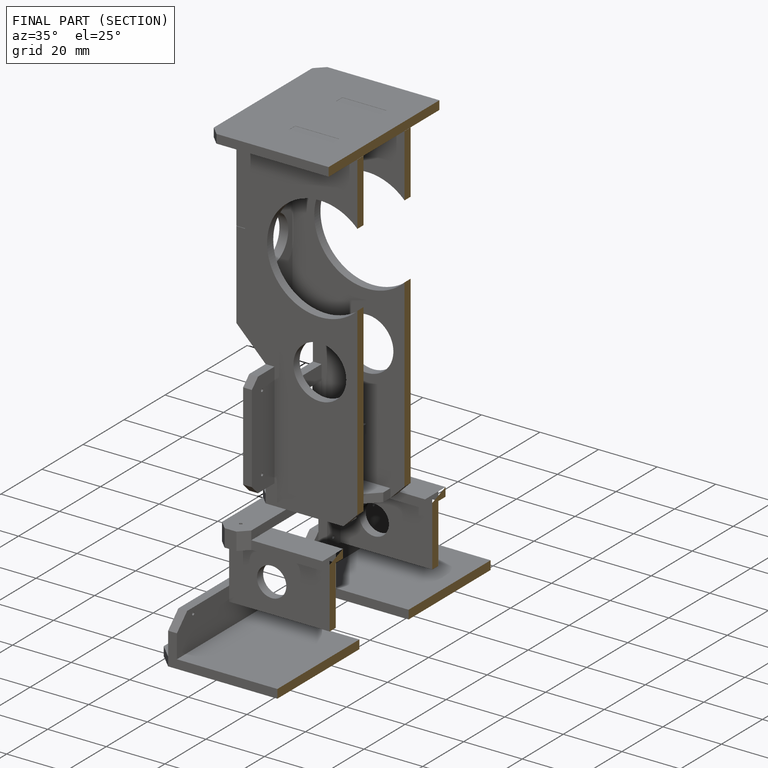
[diagram: finished part — half-section view (interior)]
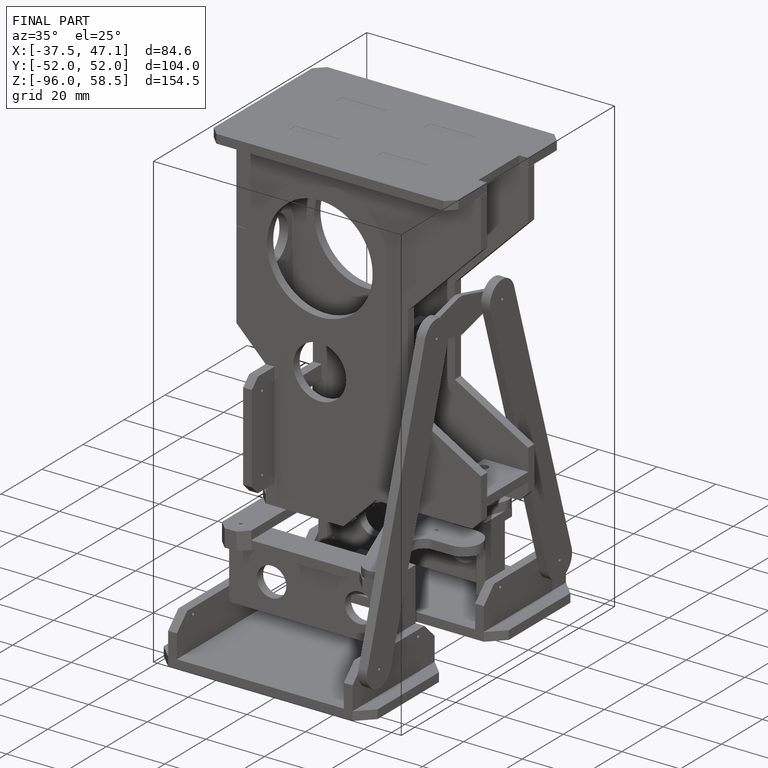
[diagram: finished part — iso view with bounding-box wireframe]
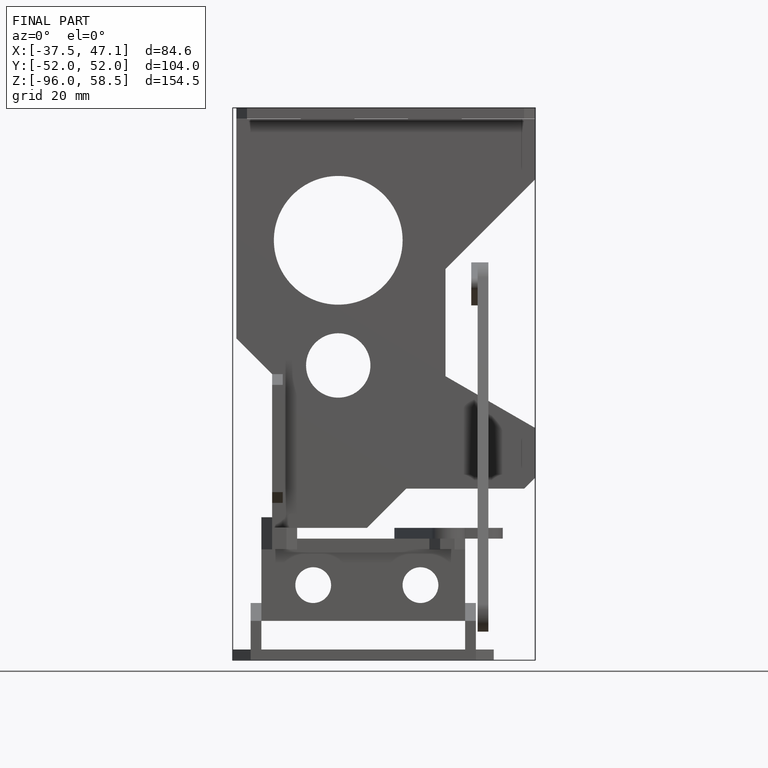
[diagram: finished part — front view with bounding-box wireframe]
